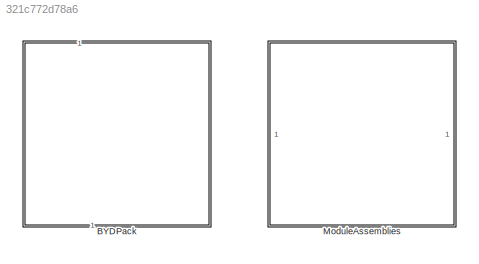
MODEL slx_321c772d78a6
KIND library
CONFIG AbsTol = auto
CONFIG EnableMultiTasking = off
CONFIG FixedStep = auto
CONFIG MaxStep = auto
CONFIG MinStep = auto
CONFIG RelTol = 1e-3
CONFIG SampleTimeConstraint = Unconstrained
CONFIG SolverName = VariableStepAuto
CONFIG StartTime = 0.0
CONFIG StopTime = 10.0
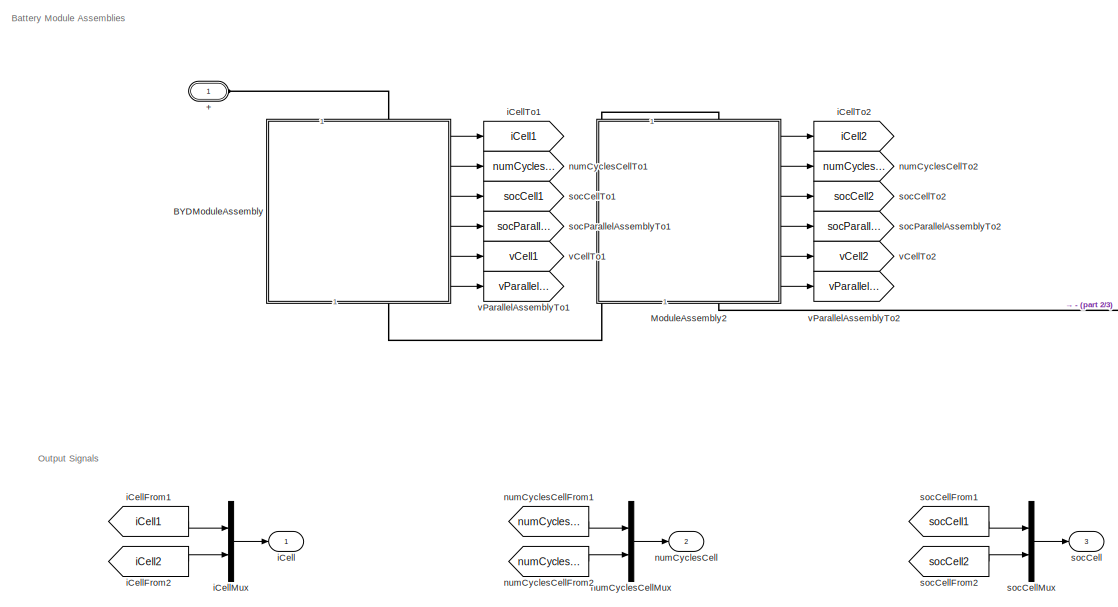
[diagram: BYDPack - part 1/3, left side, full height]
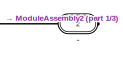
[diagram: BYDPack - part 2/3, top right region]
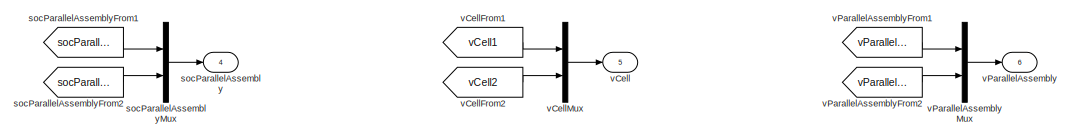
[diagram: BYDPack - part 3/3, bottom right region]
BLOCK [SubSystem] BYDPack
  CopyFcn = battery_builder_rtmsupport('copyfcn',gcbh);
  LoadFcn = battery_builder_rtmsupport('loadfcn',gcbh);
  PortSchema = {"entries":[{"content":{"sides":[{"content":{"connectorIds":["LConn1"]},"type":"ConnectorPlacement.EquallySpacedRectSide","uuid":"aeacc5ac-7cbb-4c04-9c68-9cbf0c1e86d1"},{"content":{"connectorIds":["RConn1"],"side":"RIGHT"},"type":"ConnectorPlacement.EquallySpacedRectSide","uuid":"4793d8a8-6647-416e-a1cf-54c877f8d0df"},{"content":{"side":"TOP"},"type":"ConnectorPlacement.EquallySpacedRectSide","uui...<+412ch>  <repeated x4 — deduplicated; at blocks: BYDPack, BYDModuleAssembly, ModuleAssembly2, ModuleAssemblyType1>
  PreCopyFcn = battery_builder_rtmsupport('precopyfcn',gcbh);
  PreDeleteFcn = battery_builder_rtmsupport('predeletefcn',gcbh);
BLOCK [PMIOPort] BYDPack/+
  Side = Left
BLOCK [PMIOPort] BYDPack/-
  Port = 2
  Side = Right
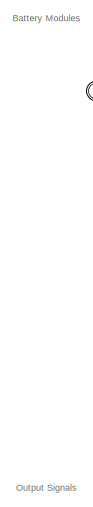
[diagram: BYDPack/BYDModuleAssembly - part 1/5, top left region]
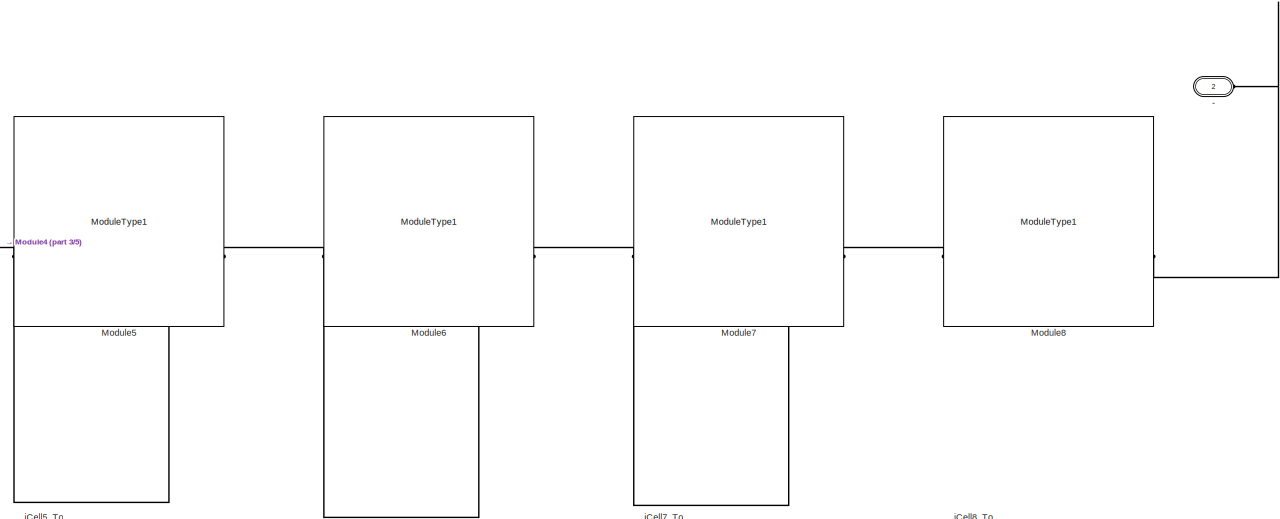
[diagram: BYDPack/BYDModuleAssembly - part 2/5, top right region]
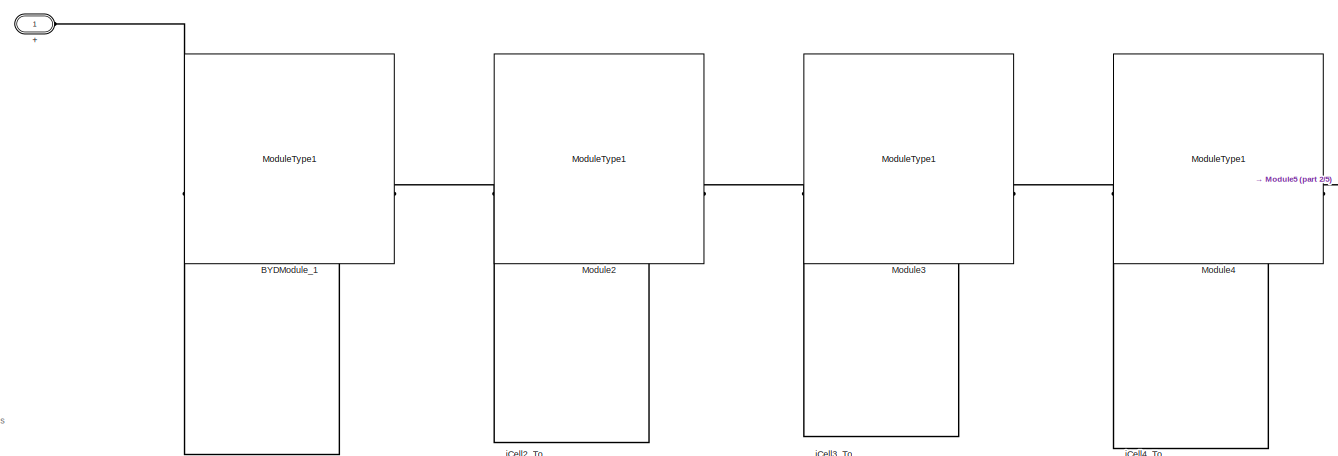
[diagram: BYDPack/BYDModuleAssembly - part 3/5, top left region]
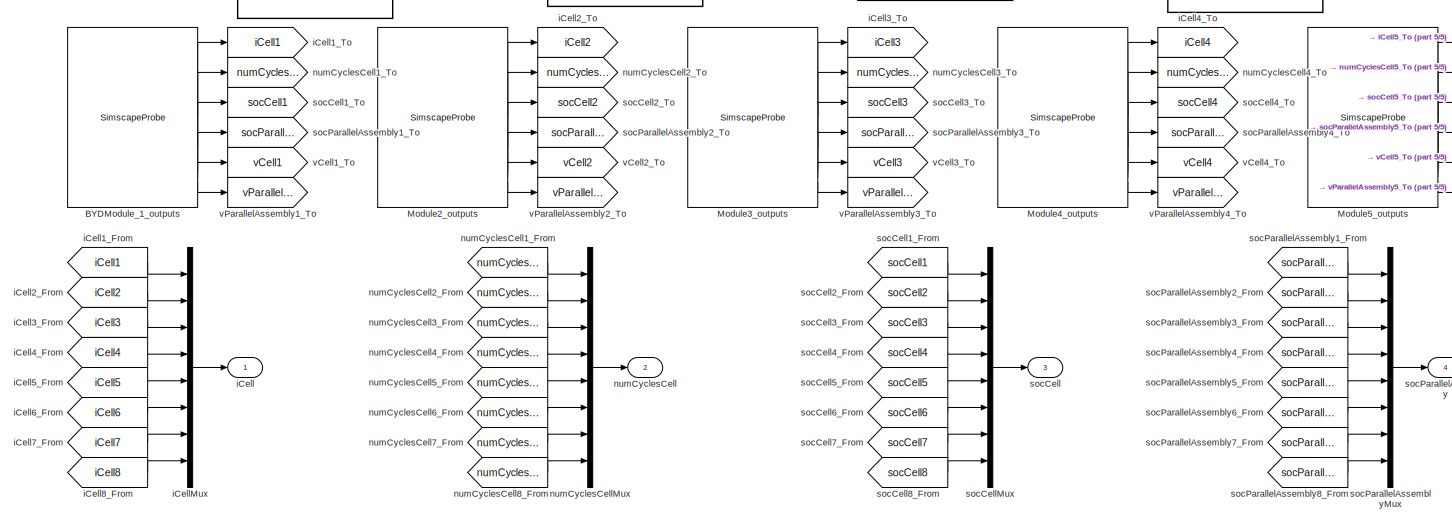
[diagram: BYDPack/BYDModuleAssembly - part 4/5, bottom left region]
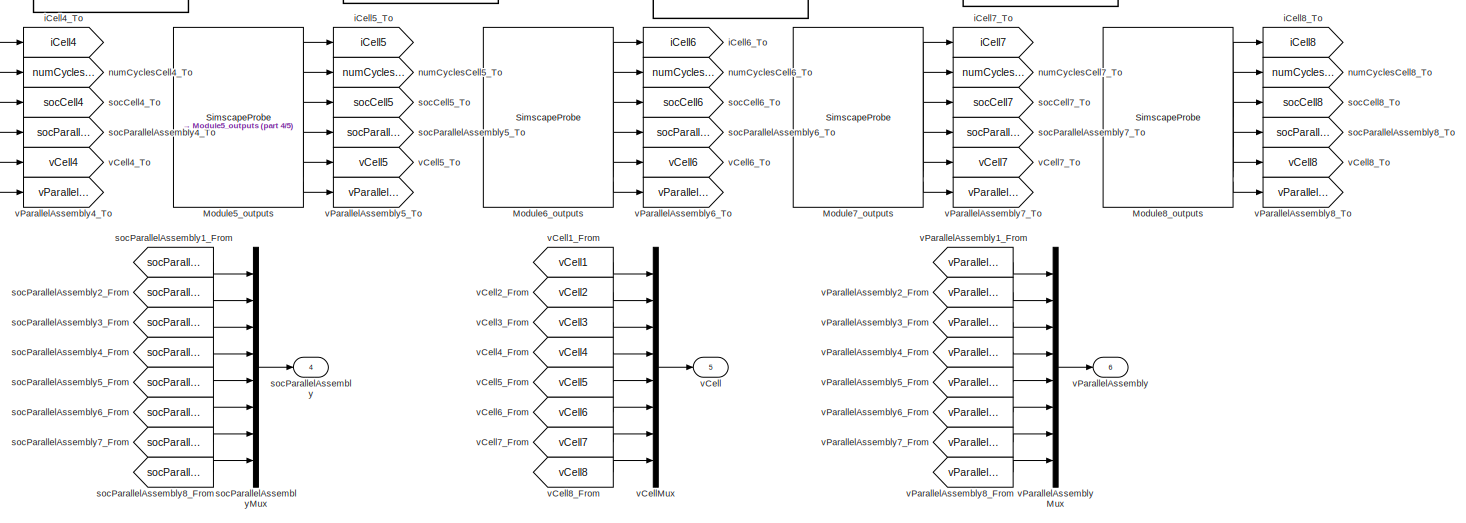
[diagram: BYDPack/BYDModuleAssembly - part 5/5, bottom right region]
BLOCK [SubSystem] BYDPack/BYDModuleAssembly
  CopyFcn = battery_builder_rtmsupport('copyfcn',gcbh);
  LoadFcn = battery_builder_rtmsupport('loadfcn',gcbh);
  PreCopyFcn = battery_builder_rtmsupport('precopyfcn',gcbh);
  PreDeleteFcn = battery_builder_rtmsupport('predeletefcn',gcbh);
BLOCK [PMIOPort] BYDPack/BYDModuleAssembly/+
  Side = Left
BLOCK [PMIOPort] BYDPack/BYDModuleAssembly/-
  Port = 2
  Side = Right
BLOCK [Reference] BYDPack/BYDModuleAssembly/BYDModule_1  REF=Batteries_BYD_lib/Modules/ModuleType1
  SourceBlock = Batteries_BYD_lib/Modules/ModuleType1
  SourceType = ModuleType1
BLOCK [SimscapeProbe] BYDPack/BYDModuleAssembly/BYDModule_1_outputs
  BoundBlock = 133
  Variables = {"iCell":{"Probing":"ON"},"numCyclesCell":{"Probing":"ON"},"socCell":{"Probing":"ON"},"socParallelAssembly":{"Probing":"ON"},"vCell":{"Probing":"ON"},"vParallelAssembly":{"Probing":"ON"}}
BLOCK [Reference] BYDPack/BYDModuleAssembly/Module2  REF=Batteries_BYD_lib/Modules/ModuleType1
  SourceBlock = Batteries_BYD_lib/Modules/ModuleType1
  SourceType = ModuleType1
BLOCK [SimscapeProbe] BYDPack/BYDModuleAssembly/Module2_outputs
  BoundBlock = 135
  Variables = {"iCell":{"Probing":"ON"},"numCyclesCell":{"Probing":"ON"},"socCell":{"Probing":"ON"},"socParallelAssembly":{"Probing":"ON"},"vCell":{"Probing":"ON"},"vParallelAssembly":{"Probing":"ON"}}
BLOCK [Reference] BYDPack/BYDModuleAssembly/Module3  REF=Batteries_BYD_lib/Modules/ModuleType1
  SourceBlock = Batteries_BYD_lib/Modules/ModuleType1
  SourceType = ModuleType1
BLOCK [SimscapeProbe] BYDPack/BYDModuleAssembly/Module3_outputs
  BoundBlock = 137
  Variables = {"iCell":{"Probing":"ON"},"numCyclesCell":{"Probing":"ON"},"socCell":{"Probing":"ON"},"socParallelAssembly":{"Probing":"ON"},"vCell":{"Probing":"ON"},"vParallelAssembly":{"Probing":"ON"}}
BLOCK [Reference] BYDPack/BYDModuleAssembly/Module4  REF=Batteries_BYD_lib/Modules/ModuleType1
  SourceBlock = Batteries_BYD_lib/Modules/ModuleType1
  SourceType = ModuleType1
BLOCK [SimscapeProbe] BYDPack/BYDModuleAssembly/Module4_outputs
  BoundBlock = 139
  Variables = {"iCell":{"Probing":"ON"},"numCyclesCell":{"Probing":"ON"},"socCell":{"Probing":"ON"},"socParallelAssembly":{"Probing":"ON"},"vCell":{"Probing":"ON"},"vParallelAssembly":{"Probing":"ON"}}
BLOCK [Reference] BYDPack/BYDModuleAssembly/Module5  REF=Batteries_BYD_lib/Modules/ModuleType1
  SourceBlock = Batteries_BYD_lib/Modules/ModuleType1
  SourceType = ModuleType1
BLOCK [SimscapeProbe] BYDPack/BYDModuleAssembly/Module5_outputs
  BoundBlock = 141
  Variables = {"iCell":{"Probing":"ON"},"numCyclesCell":{"Probing":"ON"},"socCell":{"Probing":"ON"},"socParallelAssembly":{"Probing":"ON"},"vCell":{"Probing":"ON"},"vParallelAssembly":{"Probing":"ON"}}
BLOCK [Reference] BYDPack/BYDModuleAssembly/Module6  REF=Batteries_BYD_lib/Modules/ModuleType1
  SourceBlock = Batteries_BYD_lib/Modules/ModuleType1
  SourceType = ModuleType1
BLOCK [SimscapeProbe] BYDPack/BYDModuleAssembly/Module6_outputs
  BoundBlock = 143
  Variables = {"iCell":{"Probing":"ON"},"numCyclesCell":{"Probing":"ON"},"socCell":{"Probing":"ON"},"socParallelAssembly":{"Probing":"ON"},"vCell":{"Probing":"ON"},"vParallelAssembly":{"Probing":"ON"}}
BLOCK [Reference] BYDPack/BYDModuleAssembly/Module7  REF=Batteries_BYD_lib/Modules/ModuleType1
  SourceBlock = Batteries_BYD_lib/Modules/ModuleType1
  SourceType = ModuleType1
BLOCK [SimscapeProbe] BYDPack/BYDModuleAssembly/Module7_outputs
  BoundBlock = 145
  Variables = {"iCell":{"Probing":"ON"},"numCyclesCell":{"Probing":"ON"},"socCell":{"Probing":"ON"},"socParallelAssembly":{"Probing":"ON"},"vCell":{"Probing":"ON"},"vParallelAssembly":{"Probing":"ON"}}
BLOCK [Reference] BYDPack/BYDModuleAssembly/Module8  REF=Batteries_BYD_lib/Modules/ModuleType1
  SourceBlock = Batteries_BYD_lib/Modules/ModuleType1
  SourceType = ModuleType1
BLOCK [SimscapeProbe] BYDPack/BYDModuleAssembly/Module8_outputs
  BoundBlock = 147
  Variables = {"iCell":{"Probing":"ON"},"numCyclesCell":{"Probing":"ON"},"socCell":{"Probing":"ON"},"socParallelAssembly":{"Probing":"ON"},"vCell":{"Probing":"ON"},"vParallelAssembly":{"Probing":"ON"}}
BLOCK [Outport] BYDPack/BYDModuleAssembly/iCell
BLOCK [From] BYDPack/BYDModuleAssembly/iCell1_From
  GotoTag = iCell1
BLOCK [Goto] BYDPack/BYDModuleAssembly/iCell1_To
  GotoTag = iCell1
BLOCK [From] BYDPack/BYDModuleAssembly/iCell2_From
  GotoTag = iCell2
BLOCK [Goto] BYDPack/BYDModuleAssembly/iCell2_To
  GotoTag = iCell2
BLOCK [From] BYDPack/BYDModuleAssembly/iCell3_From
  GotoTag = iCell3
BLOCK [Goto] BYDPack/BYDModuleAssembly/iCell3_To
  GotoTag = iCell3
BLOCK [From] BYDPack/BYDModuleAssembly/iCell4_From
  GotoTag = iCell4
BLOCK [Goto] BYDPack/BYDModuleAssembly/iCell4_To
  GotoTag = iCell4
BLOCK [From] BYDPack/BYDModuleAssembly/iCell5_From
  GotoTag = iCell5
BLOCK [Goto] BYDPack/BYDModuleAssembly/iCell5_To
  GotoTag = iCell5
BLOCK [From] BYDPack/BYDModuleAssembly/iCell6_From
  GotoTag = iCell6
BLOCK [Goto] BYDPack/BYDModuleAssembly/iCell6_To
  GotoTag = iCell6
BLOCK [From] BYDPack/BYDModuleAssembly/iCell7_From
  GotoTag = iCell7
BLOCK [Goto] BYDPack/BYDModuleAssembly/iCell7_To
  GotoTag = iCell7
BLOCK [From] BYDPack/BYDModuleAssembly/iCell8_From
  GotoTag = iCell8
BLOCK [Goto] BYDPack/BYDModuleAssembly/iCell8_To
  GotoTag = iCell8
BLOCK [Mux] BYDPack/BYDModuleAssembly/iCellMux
  DisplayOption = bar
  Inputs = 8
BLOCK [Outport] BYDPack/BYDModuleAssembly/numCyclesCell
  Port = 2
BLOCK [From] BYDPack/BYDModuleAssembly/numCyclesCell1_From
  GotoTag = numCyclesCell1
BLOCK [Goto] BYDPack/BYDModuleAssembly/numCyclesCell1_To
  GotoTag = numCyclesCell1
BLOCK [From] BYDPack/BYDModuleAssembly/numCyclesCell2_From
  GotoTag = numCyclesCell2
BLOCK [Goto] BYDPack/BYDModuleAssembly/numCyclesCell2_To
  GotoTag = numCyclesCell2
BLOCK [From] BYDPack/BYDModuleAssembly/numCyclesCell3_From
  GotoTag = numCyclesCell3
BLOCK [Goto] BYDPack/BYDModuleAssembly/numCyclesCell3_To
  GotoTag = numCyclesCell3
BLOCK [From] BYDPack/BYDModuleAssembly/numCyclesCell4_From
  GotoTag = numCyclesCell4
BLOCK [Goto] BYDPack/BYDModuleAssembly/numCyclesCell4_To
  GotoTag = numCyclesCell4
BLOCK [From] BYDPack/BYDModuleAssembly/numCyclesCell5_From
  GotoTag = numCyclesCell5
BLOCK [Goto] BYDPack/BYDModuleAssembly/numCyclesCell5_To
  GotoTag = numCyclesCell5
BLOCK [From] BYDPack/BYDModuleAssembly/numCyclesCell6_From
  GotoTag = numCyclesCell6
BLOCK [Goto] BYDPack/BYDModuleAssembly/numCyclesCell6_To
  GotoTag = numCyclesCell6
BLOCK [From] BYDPack/BYDModuleAssembly/numCyclesCell7_From
  GotoTag = numCyclesCell7
BLOCK [Goto] BYDPack/BYDModuleAssembly/numCyclesCell7_To
  GotoTag = numCyclesCell7
BLOCK [From] BYDPack/BYDModuleAssembly/numCyclesCell8_From
  GotoTag = numCyclesCell8
BLOCK [Goto] BYDPack/BYDModuleAssembly/numCyclesCell8_To
  GotoTag = numCyclesCell8
BLOCK [Mux] BYDPack/BYDModuleAssembly/numCyclesCellMux
  DisplayOption = bar
  Inputs = 8
BLOCK [Outport] BYDPack/BYDModuleAssembly/socCell
  Port = 3
BLOCK [From] BYDPack/BYDModuleAssembly/socCell1_From
  GotoTag = socCell1
BLOCK [Goto] BYDPack/BYDModuleAssembly/socCell1_To
  GotoTag = socCell1
BLOCK [From] BYDPack/BYDModuleAssembly/socCell2_From
  GotoTag = socCell2
BLOCK [Goto] BYDPack/BYDModuleAssembly/socCell2_To
  GotoTag = socCell2
BLOCK [From] BYDPack/BYDModuleAssembly/socCell3_From
  GotoTag = socCell3
BLOCK [Goto] BYDPack/BYDModuleAssembly/socCell3_To
  GotoTag = socCell3
BLOCK [From] BYDPack/BYDModuleAssembly/socCell4_From
  GotoTag = socCell4
BLOCK [Goto] BYDPack/BYDModuleAssembly/socCell4_To
  GotoTag = socCell4
BLOCK [From] BYDPack/BYDModuleAssembly/socCell5_From
  GotoTag = socCell5
BLOCK [Goto] BYDPack/BYDModuleAssembly/socCell5_To
  GotoTag = socCell5
BLOCK [From] BYDPack/BYDModuleAssembly/socCell6_From
  GotoTag = socCell6
BLOCK [Goto] BYDPack/BYDModuleAssembly/socCell6_To
  GotoTag = socCell6
BLOCK [From] BYDPack/BYDModuleAssembly/socCell7_From
  GotoTag = socCell7
BLOCK [Goto] BYDPack/BYDModuleAssembly/socCell7_To
  GotoTag = socCell7
BLOCK [From] BYDPack/BYDModuleAssembly/socCell8_From
  GotoTag = socCell8
BLOCK [Goto] BYDPack/BYDModuleAssembly/socCell8_To
  GotoTag = socCell8
BLOCK [Mux] BYDPack/BYDModuleAssembly/socCellMux
  DisplayOption = bar
  Inputs = 8
BLOCK [Outport] BYDPack/BYDModuleAssembly/socParallelAssembly
  Port = 4
BLOCK [From] BYDPack/BYDModuleAssembly/socParallelAssembly1_From
  GotoTag = socParallelAssembly1
BLOCK [Goto] BYDPack/BYDModuleAssembly/socParallelAssembly1_To
  GotoTag = socParallelAssembly1
BLOCK [From] BYDPack/BYDModuleAssembly/socParallelAssembly2_From
  GotoTag = socParallelAssembly2
BLOCK [Goto] BYDPack/BYDModuleAssembly/socParallelAssembly2_To
  GotoTag = socParallelAssembly2
BLOCK [From] BYDPack/BYDModuleAssembly/socParallelAssembly3_From
  GotoTag = socParallelAssembly3
BLOCK [Goto] BYDPack/BYDModuleAssembly/socParallelAssembly3_To
  GotoTag = socParallelAssembly3
BLOCK [From] BYDPack/BYDModuleAssembly/socParallelAssembly4_From
  GotoTag = socParallelAssembly4
BLOCK [Goto] BYDPack/BYDModuleAssembly/socParallelAssembly4_To
  GotoTag = socParallelAssembly4
BLOCK [From] BYDPack/BYDModuleAssembly/socParallelAssembly5_From
  GotoTag = socParallelAssembly5
BLOCK [Goto] BYDPack/BYDModuleAssembly/socParallelAssembly5_To
  GotoTag = socParallelAssembly5
BLOCK [From] BYDPack/BYDModuleAssembly/socParallelAssembly6_From
  GotoTag = socParallelAssembly6
BLOCK [Goto] BYDPack/BYDModuleAssembly/socParallelAssembly6_To
  GotoTag = socParallelAssembly6
BLOCK [From] BYDPack/BYDModuleAssembly/socParallelAssembly7_From
  GotoTag = socParallelAssembly7
BLOCK [Goto] BYDPack/BYDModuleAssembly/socParallelAssembly7_To
  GotoTag = socParallelAssembly7
BLOCK [From] BYDPack/BYDModuleAssembly/socParallelAssembly8_From
  GotoTag = socParallelAssembly8
BLOCK [Goto] BYDPack/BYDModuleAssembly/socParallelAssembly8_To
  GotoTag = socParallelAssembly8
BLOCK [Mux] BYDPack/BYDModuleAssembly/socParallelAssemblyMux
  DisplayOption = bar
  Inputs = 8
BLOCK [Outport] BYDPack/BYDModuleAssembly/vCell
  Port = 5
BLOCK [From] BYDPack/BYDModuleAssembly/vCell1_From
  GotoTag = vCell1
BLOCK [Goto] BYDPack/BYDModuleAssembly/vCell1_To
  GotoTag = vCell1
BLOCK [From] BYDPack/BYDModuleAssembly/vCell2_From
  GotoTag = vCell2
BLOCK [Goto] BYDPack/BYDModuleAssembly/vCell2_To
  GotoTag = vCell2
BLOCK [From] BYDPack/BYDModuleAssembly/vCell3_From
  GotoTag = vCell3
BLOCK [Goto] BYDPack/BYDModuleAssembly/vCell3_To
  GotoTag = vCell3
BLOCK [From] BYDPack/BYDModuleAssembly/vCell4_From
  GotoTag = vCell4
BLOCK [Goto] BYDPack/BYDModuleAssembly/vCell4_To
  GotoTag = vCell4
BLOCK [From] BYDPack/BYDModuleAssembly/vCell5_From
  GotoTag = vCell5
BLOCK [Goto] BYDPack/BYDModuleAssembly/vCell5_To
  GotoTag = vCell5
BLOCK [From] BYDPack/BYDModuleAssembly/vCell6_From
  GotoTag = vCell6
BLOCK [Goto] BYDPack/BYDModuleAssembly/vCell6_To
  GotoTag = vCell6
BLOCK [From] BYDPack/BYDModuleAssembly/vCell7_From
  GotoTag = vCell7
BLOCK [Goto] BYDPack/BYDModuleAssembly/vCell7_To
  GotoTag = vCell7
BLOCK [From] BYDPack/BYDModuleAssembly/vCell8_From
  GotoTag = vCell8
BLOCK [Goto] BYDPack/BYDModuleAssembly/vCell8_To
  GotoTag = vCell8
BLOCK [Mux] BYDPack/BYDModuleAssembly/vCellMux
  DisplayOption = bar
  Inputs = 8
BLOCK [Outport] BYDPack/BYDModuleAssembly/vParallelAssembly
  Port = 6
BLOCK [From] BYDPack/BYDModuleAssembly/vParallelAssembly1_From
  GotoTag = vParallelAssembly1
BLOCK [Goto] BYDPack/BYDModuleAssembly/vParallelAssembly1_To
  GotoTag = vParallelAssembly1
BLOCK [From] BYDPack/BYDModuleAssembly/vParallelAssembly2_From
  GotoTag = vParallelAssembly2
BLOCK [Goto] BYDPack/BYDModuleAssembly/vParallelAssembly2_To
  GotoTag = vParallelAssembly2
BLOCK [From] BYDPack/BYDModuleAssembly/vParallelAssembly3_From
  GotoTag = vParallelAssembly3
BLOCK [Goto] BYDPack/BYDModuleAssembly/vParallelAssembly3_To
  GotoTag = vParallelAssembly3
BLOCK [From] BYDPack/BYDModuleAssembly/vParallelAssembly4_From
  GotoTag = vParallelAssembly4
BLOCK [Goto] BYDPack/BYDModuleAssembly/vParallelAssembly4_To
  GotoTag = vParallelAssembly4
BLOCK [From] BYDPack/BYDModuleAssembly/vParallelAssembly5_From
  GotoTag = vParallelAssembly5
BLOCK [Goto] BYDPack/BYDModuleAssembly/vParallelAssembly5_To
  GotoTag = vParallelAssembly5
BLOCK [From] BYDPack/BYDModuleAssembly/vParallelAssembly6_From
  GotoTag = vParallelAssembly6
BLOCK [Goto] BYDPack/BYDModuleAssembly/vParallelAssembly6_To
  GotoTag = vParallelAssembly6
BLOCK [From] BYDPack/BYDModuleAssembly/vParallelAssembly7_From
  GotoTag = vParallelAssembly7
BLOCK [Goto] BYDPack/BYDModuleAssembly/vParallelAssembly7_To
  GotoTag = vParallelAssembly7
BLOCK [From] BYDPack/BYDModuleAssembly/vParallelAssembly8_From
  GotoTag = vParallelAssembly8
BLOCK [Goto] BYDPack/BYDModuleAssembly/vParallelAssembly8_To
  GotoTag = vParallelAssembly8
BLOCK [Mux] BYDPack/BYDModuleAssembly/vParallelAssemblyMux
  DisplayOption = bar
  Inputs = 8
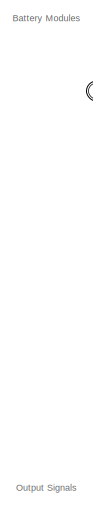
[diagram: BYDPack/ModuleAssembly2 - part 1/5, top left region]
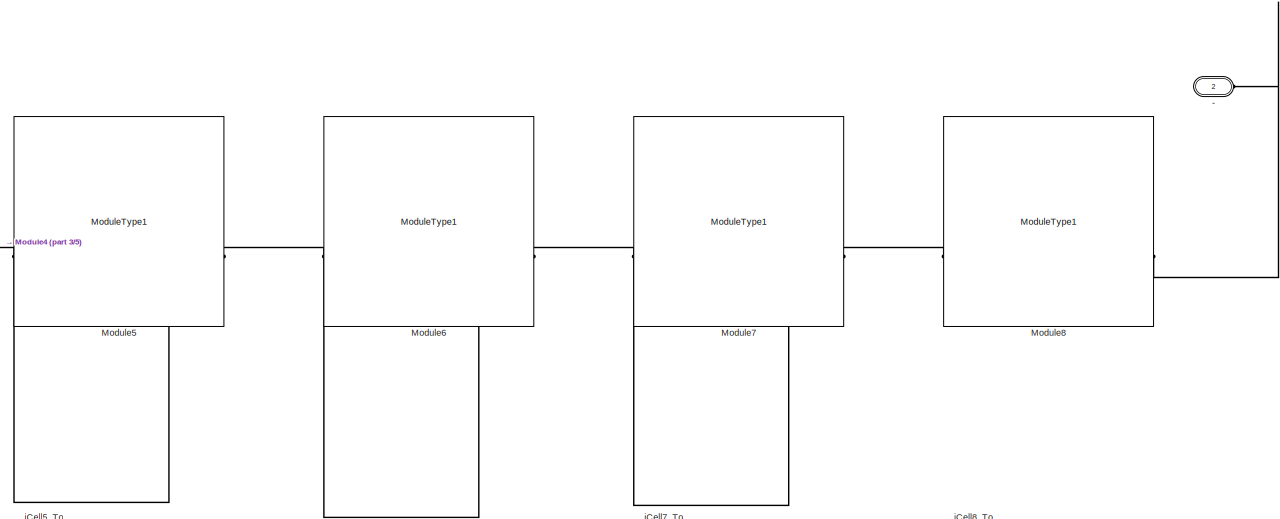
[diagram: BYDPack/ModuleAssembly2 - part 2/5, top right region]
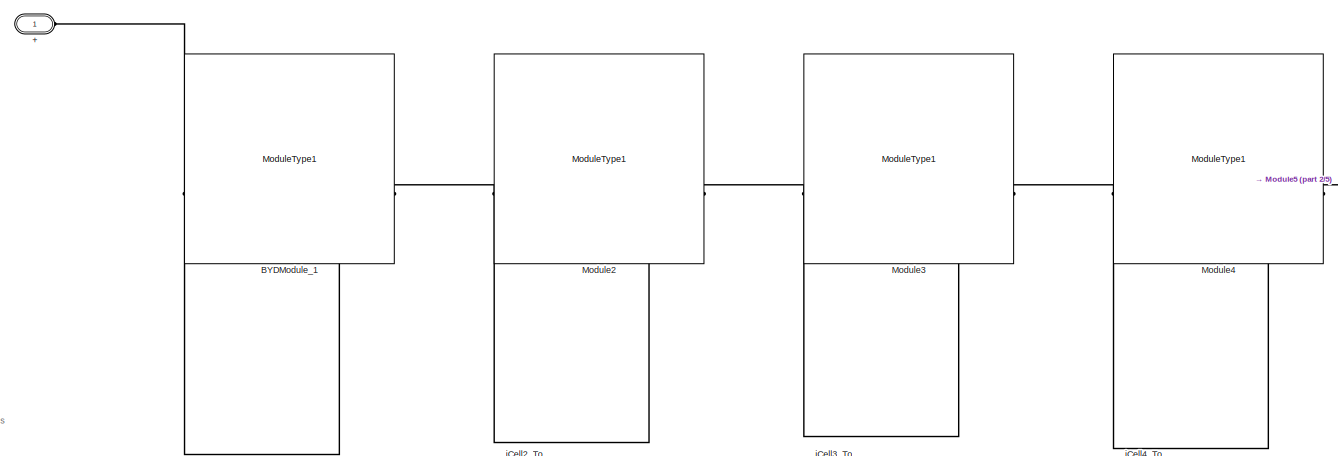
[diagram: BYDPack/ModuleAssembly2 - part 3/5, top left region]
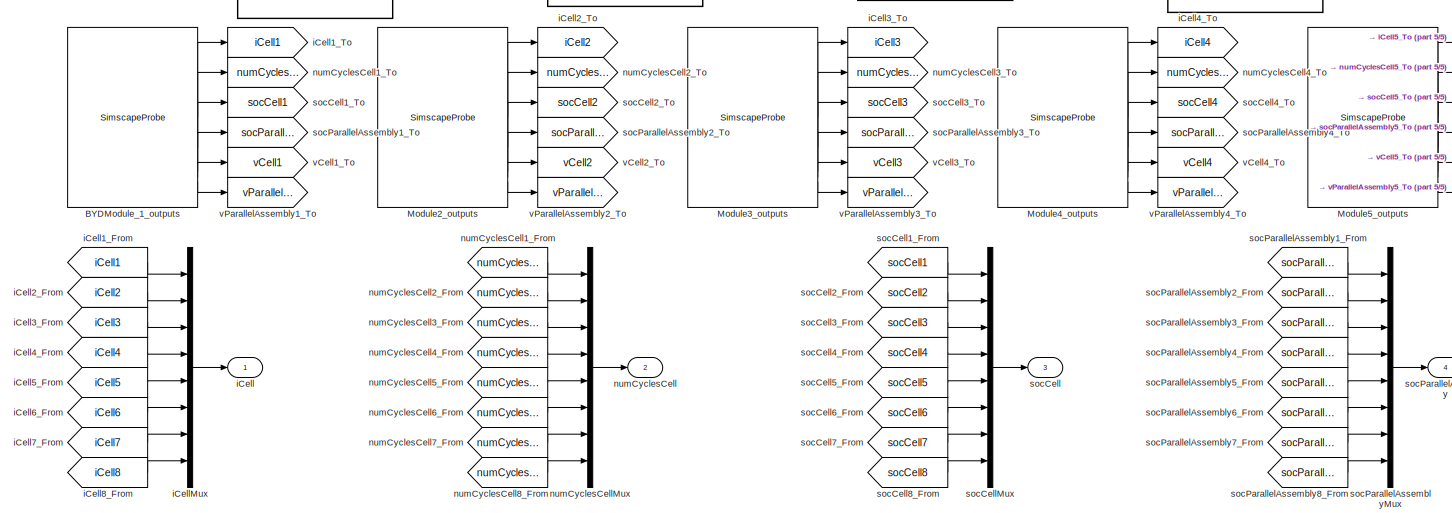
[diagram: BYDPack/ModuleAssembly2 - part 4/5, bottom left region]
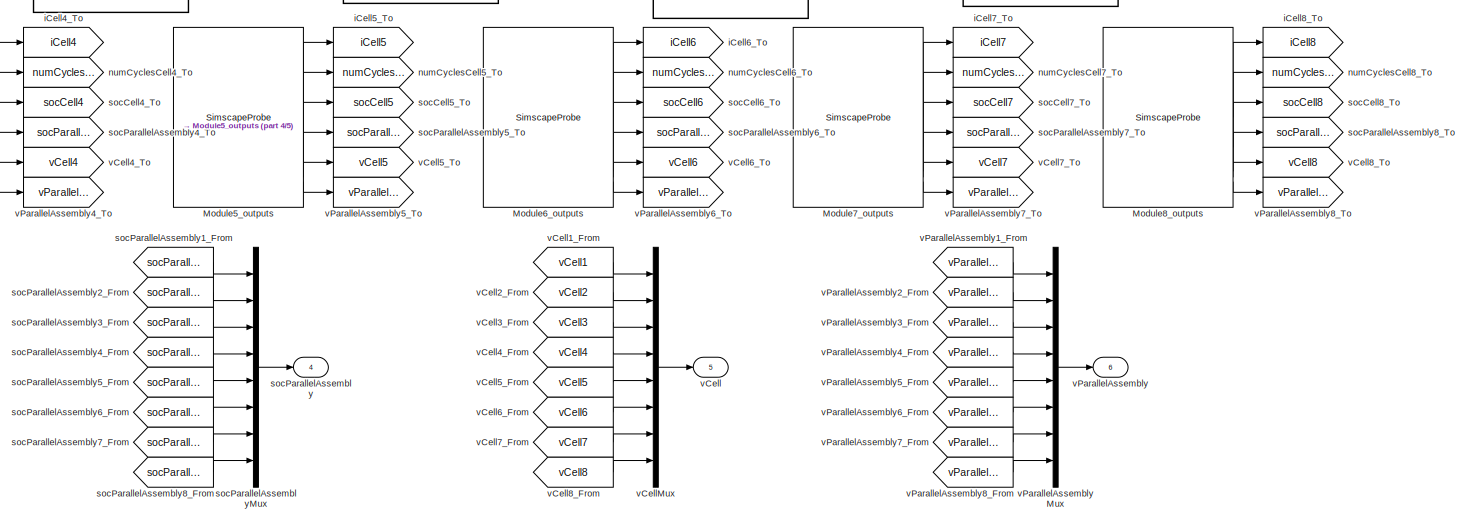
[diagram: BYDPack/ModuleAssembly2 - part 5/5, bottom right region]
BLOCK [SubSystem] BYDPack/ModuleAssembly2
  CopyFcn = battery_builder_rtmsupport('copyfcn',gcbh);
  LoadFcn = battery_builder_rtmsupport('loadfcn',gcbh);
  PreCopyFcn = battery_builder_rtmsupport('precopyfcn',gcbh);
  PreDeleteFcn = battery_builder_rtmsupport('predeletefcn',gcbh);
BLOCK [PMIOPort] BYDPack/ModuleAssembly2/+
  Side = Left
BLOCK [PMIOPort] BYDPack/ModuleAssembly2/-
  Port = 2
  Side = Right
BLOCK [Reference] BYDPack/ModuleAssembly2/BYDModule_1  REF=Batteries_BYD_lib/Modules/ModuleType1
  SourceBlock = Batteries_BYD_lib/Modules/ModuleType1
  SourceType = ModuleType1
BLOCK [SimscapeProbe] BYDPack/ModuleAssembly2/BYDModule_1_outputs
  BoundBlock = 262
  Variables = {"iCell":{"Probing":"ON"},"numCyclesCell":{"Probing":"ON"},"socCell":{"Probing":"ON"},"socParallelAssembly":{"Probing":"ON"},"vCell":{"Probing":"ON"},"vParallelAssembly":{"Probing":"ON"}}
BLOCK [Reference] BYDPack/ModuleAssembly2/Module2  REF=Batteries_BYD_lib/Modules/ModuleType1
  SourceBlock = Batteries_BYD_lib/Modules/ModuleType1
  SourceType = ModuleType1
BLOCK [SimscapeProbe] BYDPack/ModuleAssembly2/Module2_outputs
  BoundBlock = 264
  Variables = {"iCell":{"Probing":"ON"},"numCyclesCell":{"Probing":"ON"},"socCell":{"Probing":"ON"},"socParallelAssembly":{"Probing":"ON"},"vCell":{"Probing":"ON"},"vParallelAssembly":{"Probing":"ON"}}
BLOCK [Reference] BYDPack/ModuleAssembly2/Module3  REF=Batteries_BYD_lib/Modules/ModuleType1
  SourceBlock = Batteries_BYD_lib/Modules/ModuleType1
  SourceType = ModuleType1
BLOCK [SimscapeProbe] BYDPack/ModuleAssembly2/Module3_outputs
  BoundBlock = 266
  Variables = {"iCell":{"Probing":"ON"},"numCyclesCell":{"Probing":"ON"},"socCell":{"Probing":"ON"},"socParallelAssembly":{"Probing":"ON"},"vCell":{"Probing":"ON"},"vParallelAssembly":{"Probing":"ON"}}
BLOCK [Reference] BYDPack/ModuleAssembly2/Module4  REF=Batteries_BYD_lib/Modules/ModuleType1
  SourceBlock = Batteries_BYD_lib/Modules/ModuleType1
  SourceType = ModuleType1
BLOCK [SimscapeProbe] BYDPack/ModuleAssembly2/Module4_outputs
  BoundBlock = 268
  Variables = {"iCell":{"Probing":"ON"},"numCyclesCell":{"Probing":"ON"},"socCell":{"Probing":"ON"},"socParallelAssembly":{"Probing":"ON"},"vCell":{"Probing":"ON"},"vParallelAssembly":{"Probing":"ON"}}
BLOCK [Reference] BYDPack/ModuleAssembly2/Module5  REF=Batteries_BYD_lib/Modules/ModuleType1
  SourceBlock = Batteries_BYD_lib/Modules/ModuleType1
  SourceType = ModuleType1
BLOCK [SimscapeProbe] BYDPack/ModuleAssembly2/Module5_outputs
  BoundBlock = 270
  Variables = {"iCell":{"Probing":"ON"},"numCyclesCell":{"Probing":"ON"},"socCell":{"Probing":"ON"},"socParallelAssembly":{"Probing":"ON"},"vCell":{"Probing":"ON"},"vParallelAssembly":{"Probing":"ON"}}
BLOCK [Reference] BYDPack/ModuleAssembly2/Module6  REF=Batteries_BYD_lib/Modules/ModuleType1
  SourceBlock = Batteries_BYD_lib/Modules/ModuleType1
  SourceType = ModuleType1
BLOCK [SimscapeProbe] BYDPack/ModuleAssembly2/Module6_outputs
  BoundBlock = 272
  Variables = {"iCell":{"Probing":"ON"},"numCyclesCell":{"Probing":"ON"},"socCell":{"Probing":"ON"},"socParallelAssembly":{"Probing":"ON"},"vCell":{"Probing":"ON"},"vParallelAssembly":{"Probing":"ON"}}
BLOCK [Reference] BYDPack/ModuleAssembly2/Module7  REF=Batteries_BYD_lib/Modules/ModuleType1
  SourceBlock = Batteries_BYD_lib/Modules/ModuleType1
  SourceType = ModuleType1
BLOCK [SimscapeProbe] BYDPack/ModuleAssembly2/Module7_outputs
  BoundBlock = 274
  Variables = {"iCell":{"Probing":"ON"},"numCyclesCell":{"Probing":"ON"},"socCell":{"Probing":"ON"},"socParallelAssembly":{"Probing":"ON"},"vCell":{"Probing":"ON"},"vParallelAssembly":{"Probing":"ON"}}
BLOCK [Reference] BYDPack/ModuleAssembly2/Module8  REF=Batteries_BYD_lib/Modules/ModuleType1
  SourceBlock = Batteries_BYD_lib/Modules/ModuleType1
  SourceType = ModuleType1
BLOCK [SimscapeProbe] BYDPack/ModuleAssembly2/Module8_outputs
  BoundBlock = 276
  Variables = {"iCell":{"Probing":"ON"},"numCyclesCell":{"Probing":"ON"},"socCell":{"Probing":"ON"},"socParallelAssembly":{"Probing":"ON"},"vCell":{"Probing":"ON"},"vParallelAssembly":{"Probing":"ON"}}
BLOCK [Outport] BYDPack/ModuleAssembly2/iCell
BLOCK [From] BYDPack/ModuleAssembly2/iCell1_From
  GotoTag = iCell1
BLOCK [Goto] BYDPack/ModuleAssembly2/iCell1_To
  GotoTag = iCell1
BLOCK [From] BYDPack/ModuleAssembly2/iCell2_From
  GotoTag = iCell2
BLOCK [Goto] BYDPack/ModuleAssembly2/iCell2_To
  GotoTag = iCell2
BLOCK [From] BYDPack/ModuleAssembly2/iCell3_From
  GotoTag = iCell3
BLOCK [Goto] BYDPack/ModuleAssembly2/iCell3_To
  GotoTag = iCell3
BLOCK [From] BYDPack/ModuleAssembly2/iCell4_From
  GotoTag = iCell4
BLOCK [Goto] BYDPack/ModuleAssembly2/iCell4_To
  GotoTag = iCell4
BLOCK [From] BYDPack/ModuleAssembly2/iCell5_From
  GotoTag = iCell5
BLOCK [Goto] BYDPack/ModuleAssembly2/iCell5_To
  GotoTag = iCell5
BLOCK [From] BYDPack/ModuleAssembly2/iCell6_From
  GotoTag = iCell6
BLOCK [Goto] BYDPack/ModuleAssembly2/iCell6_To
  GotoTag = iCell6
BLOCK [From] BYDPack/ModuleAssembly2/iCell7_From
  GotoTag = iCell7
BLOCK [Goto] BYDPack/ModuleAssembly2/iCell7_To
  GotoTag = iCell7
BLOCK [From] BYDPack/ModuleAssembly2/iCell8_From
  GotoTag = iCell8
BLOCK [Goto] BYDPack/ModuleAssembly2/iCell8_To
  GotoTag = iCell8
BLOCK [Mux] BYDPack/ModuleAssembly2/iCellMux
  DisplayOption = bar
  Inputs = 8
BLOCK [Outport] BYDPack/ModuleAssembly2/numCyclesCell
  Port = 2
BLOCK [From] BYDPack/ModuleAssembly2/numCyclesCell1_From
  GotoTag = numCyclesCell1
BLOCK [Goto] BYDPack/ModuleAssembly2/numCyclesCell1_To
  GotoTag = numCyclesCell1
BLOCK [From] BYDPack/ModuleAssembly2/numCyclesCell2_From
  GotoTag = numCyclesCell2
BLOCK [Goto] BYDPack/ModuleAssembly2/numCyclesCell2_To
  GotoTag = numCyclesCell2
BLOCK [From] BYDPack/ModuleAssembly2/numCyclesCell3_From
  GotoTag = numCyclesCell3
BLOCK [Goto] BYDPack/ModuleAssembly2/numCyclesCell3_To
  GotoTag = numCyclesCell3
BLOCK [From] BYDPack/ModuleAssembly2/numCyclesCell4_From
  GotoTag = numCyclesCell4
BLOCK [Goto] BYDPack/ModuleAssembly2/numCyclesCell4_To
  GotoTag = numCyclesCell4
BLOCK [From] BYDPack/ModuleAssembly2/numCyclesCell5_From
  GotoTag = numCyclesCell5
BLOCK [Goto] BYDPack/ModuleAssembly2/numCyclesCell5_To
  GotoTag = numCyclesCell5
BLOCK [From] BYDPack/ModuleAssembly2/numCyclesCell6_From
  GotoTag = numCyclesCell6
BLOCK [Goto] BYDPack/ModuleAssembly2/numCyclesCell6_To
  GotoTag = numCyclesCell6
BLOCK [From] BYDPack/ModuleAssembly2/numCyclesCell7_From
  GotoTag = numCyclesCell7
BLOCK [Goto] BYDPack/ModuleAssembly2/numCyclesCell7_To
  GotoTag = numCyclesCell7
BLOCK [From] BYDPack/ModuleAssembly2/numCyclesCell8_From
  GotoTag = numCyclesCell8
BLOCK [Goto] BYDPack/ModuleAssembly2/numCyclesCell8_To
  GotoTag = numCyclesCell8
BLOCK [Mux] BYDPack/ModuleAssembly2/numCyclesCellMux
  DisplayOption = bar
  Inputs = 8
BLOCK [Outport] BYDPack/ModuleAssembly2/socCell
  Port = 3
BLOCK [From] BYDPack/ModuleAssembly2/socCell1_From
  GotoTag = socCell1
BLOCK [Goto] BYDPack/ModuleAssembly2/socCell1_To
  GotoTag = socCell1
BLOCK [From] BYDPack/ModuleAssembly2/socCell2_From
  GotoTag = socCell2
BLOCK [Goto] BYDPack/ModuleAssembly2/socCell2_To
  GotoTag = socCell2
BLOCK [From] BYDPack/ModuleAssembly2/socCell3_From
  GotoTag = socCell3
BLOCK [Goto] BYDPack/ModuleAssembly2/socCell3_To
  GotoTag = socCell3
BLOCK [From] BYDPack/ModuleAssembly2/socCell4_From
  GotoTag = socCell4
BLOCK [Goto] BYDPack/ModuleAssembly2/socCell4_To
  GotoTag = socCell4
BLOCK [From] BYDPack/ModuleAssembly2/socCell5_From
  GotoTag = socCell5
BLOCK [Goto] BYDPack/ModuleAssembly2/socCell5_To
  GotoTag = socCell5
BLOCK [From] BYDPack/ModuleAssembly2/socCell6_From
  GotoTag = socCell6
BLOCK [Goto] BYDPack/ModuleAssembly2/socCell6_To
  GotoTag = socCell6
BLOCK [From] BYDPack/ModuleAssembly2/socCell7_From
  GotoTag = socCell7
BLOCK [Goto] BYDPack/ModuleAssembly2/socCell7_To
  GotoTag = socCell7
BLOCK [From] BYDPack/ModuleAssembly2/socCell8_From
  GotoTag = socCell8
BLOCK [Goto] BYDPack/ModuleAssembly2/socCell8_To
  GotoTag = socCell8
BLOCK [Mux] BYDPack/ModuleAssembly2/socCellMux
  DisplayOption = bar
  Inputs = 8
BLOCK [Outport] BYDPack/ModuleAssembly2/socParallelAssembly
  Port = 4
BLOCK [From] BYDPack/ModuleAssembly2/socParallelAssembly1_From
  GotoTag = socParallelAssembly1
BLOCK [Goto] BYDPack/ModuleAssembly2/socParallelAssembly1_To
  GotoTag = socParallelAssembly1
BLOCK [From] BYDPack/ModuleAssembly2/socParallelAssembly2_From
  GotoTag = socParallelAssembly2
BLOCK [Goto] BYDPack/ModuleAssembly2/socParallelAssembly2_To
  GotoTag = socParallelAssembly2
BLOCK [From] BYDPack/ModuleAssembly2/socParallelAssembly3_From
  GotoTag = socParallelAssembly3
BLOCK [Goto] BYDPack/ModuleAssembly2/socParallelAssembly3_To
  GotoTag = socParallelAssembly3
BLOCK [From] BYDPack/ModuleAssembly2/socParallelAssembly4_From
  GotoTag = socParallelAssembly4
BLOCK [Goto] BYDPack/ModuleAssembly2/socParallelAssembly4_To
  GotoTag = socParallelAssembly4
BLOCK [From] BYDPack/ModuleAssembly2/socParallelAssembly5_From
  GotoTag = socParallelAssembly5
BLOCK [Goto] BYDPack/ModuleAssembly2/socParallelAssembly5_To
  GotoTag = socParallelAssembly5
BLOCK [From] BYDPack/ModuleAssembly2/socParallelAssembly6_From
  GotoTag = socParallelAssembly6
BLOCK [Goto] BYDPack/ModuleAssembly2/socParallelAssembly6_To
  GotoTag = socParallelAssembly6
BLOCK [From] BYDPack/ModuleAssembly2/socParallelAssembly7_From
  GotoTag = socParallelAssembly7
BLOCK [Goto] BYDPack/ModuleAssembly2/socParallelAssembly7_To
  GotoTag = socParallelAssembly7
BLOCK [From] BYDPack/ModuleAssembly2/socParallelAssembly8_From
  GotoTag = socParallelAssembly8
BLOCK [Goto] BYDPack/ModuleAssembly2/socParallelAssembly8_To
  GotoTag = socParallelAssembly8
BLOCK [Mux] BYDPack/ModuleAssembly2/socParallelAssemblyMux
  DisplayOption = bar
  Inputs = 8
BLOCK [Outport] BYDPack/ModuleAssembly2/vCell
  Port = 5
BLOCK [From] BYDPack/ModuleAssembly2/vCell1_From
  GotoTag = vCell1
BLOCK [Goto] BYDPack/ModuleAssembly2/vCell1_To
  GotoTag = vCell1
BLOCK [From] BYDPack/ModuleAssembly2/vCell2_From
  GotoTag = vCell2
BLOCK [Goto] BYDPack/ModuleAssembly2/vCell2_To
  GotoTag = vCell2
BLOCK [From] BYDPack/ModuleAssembly2/vCell3_From
  GotoTag = vCell3
BLOCK [Goto] BYDPack/ModuleAssembly2/vCell3_To
  GotoTag = vCell3
BLOCK [From] BYDPack/ModuleAssembly2/vCell4_From
  GotoTag = vCell4
BLOCK [Goto] BYDPack/ModuleAssembly2/vCell4_To
  GotoTag = vCell4
BLOCK [From] BYDPack/ModuleAssembly2/vCell5_From
  GotoTag = vCell5
BLOCK [Goto] BYDPack/ModuleAssembly2/vCell5_To
  GotoTag = vCell5
BLOCK [From] BYDPack/ModuleAssembly2/vCell6_From
  GotoTag = vCell6
BLOCK [Goto] BYDPack/ModuleAssembly2/vCell6_To
  GotoTag = vCell6
BLOCK [From] BYDPack/ModuleAssembly2/vCell7_From
  GotoTag = vCell7
BLOCK [Goto] BYDPack/ModuleAssembly2/vCell7_To
  GotoTag = vCell7
BLOCK [From] BYDPack/ModuleAssembly2/vCell8_From
  GotoTag = vCell8
BLOCK [Goto] BYDPack/ModuleAssembly2/vCell8_To
  GotoTag = vCell8
BLOCK [Mux] BYDPack/ModuleAssembly2/vCellMux
  DisplayOption = bar
  Inputs = 8
BLOCK [Outport] BYDPack/ModuleAssembly2/vParallelAssembly
  Port = 6
BLOCK [From] BYDPack/ModuleAssembly2/vParallelAssembly1_From
  GotoTag = vParallelAssembly1
BLOCK [Goto] BYDPack/ModuleAssembly2/vParallelAssembly1_To
  GotoTag = vParallelAssembly1
BLOCK [From] BYDPack/ModuleAssembly2/vParallelAssembly2_From
  GotoTag = vParallelAssembly2
BLOCK [Goto] BYDPack/ModuleAssembly2/vParallelAssembly2_To
  GotoTag = vParallelAssembly2
BLOCK [From] BYDPack/ModuleAssembly2/vParallelAssembly3_From
  GotoTag = vParallelAssembly3
BLOCK [Goto] BYDPack/ModuleAssembly2/vParallelAssembly3_To
  GotoTag = vParallelAssembly3
BLOCK [From] BYDPack/ModuleAssembly2/vParallelAssembly4_From
  GotoTag = vParallelAssembly4
BLOCK [Goto] BYDPack/ModuleAssembly2/vParallelAssembly4_To
  GotoTag = vParallelAssembly4
BLOCK [From] BYDPack/ModuleAssembly2/vParallelAssembly5_From
  GotoTag = vParallelAssembly5
BLOCK [Goto] BYDPack/ModuleAssembly2/vParallelAssembly5_To
  GotoTag = vParallelAssembly5
BLOCK [From] BYDPack/ModuleAssembly2/vParallelAssembly6_From
  GotoTag = vParallelAssembly6
BLOCK [Goto] BYDPack/ModuleAssembly2/vParallelAssembly6_To
  GotoTag = vParallelAssembly6
BLOCK [From] BYDPack/ModuleAssembly2/vParallelAssembly7_From
  GotoTag = vParallelAssembly7
BLOCK [Goto] BYDPack/ModuleAssembly2/vParallelAssembly7_To
  GotoTag = vParallelAssembly7
BLOCK [From] BYDPack/ModuleAssembly2/vParallelAssembly8_From
  GotoTag = vParallelAssembly8
BLOCK [Goto] BYDPack/ModuleAssembly2/vParallelAssembly8_To
  GotoTag = vParallelAssembly8
BLOCK [Mux] BYDPack/ModuleAssembly2/vParallelAssemblyMux
  DisplayOption = bar
  Inputs = 8
BLOCK [Outport] BYDPack/iCell
BLOCK [From] BYDPack/iCellFrom1
  GotoTag = iCell1
BLOCK [From] BYDPack/iCellFrom2
  GotoTag = iCell2
BLOCK [Mux] BYDPack/iCellMux
  DisplayOption = bar
  Inputs = 2
BLOCK [Goto] BYDPack/iCellTo1
  GotoTag = iCell1
BLOCK [Goto] BYDPack/iCellTo2
  GotoTag = iCell2
BLOCK [Outport] BYDPack/numCyclesCell
  Port = 2
BLOCK [From] BYDPack/numCyclesCellFrom1
  GotoTag = numCyclesCell1
BLOCK [From] BYDPack/numCyclesCellFrom2
  GotoTag = numCyclesCell2
BLOCK [Mux] BYDPack/numCyclesCellMux
  DisplayOption = bar
  Inputs = 2
BLOCK [Goto] BYDPack/numCyclesCellTo1
  GotoTag = numCyclesCell1
BLOCK [Goto] BYDPack/numCyclesCellTo2
  GotoTag = numCyclesCell2
BLOCK [Outport] BYDPack/socCell
  Port = 3
BLOCK [From] BYDPack/socCellFrom1
  GotoTag = socCell1
BLOCK [From] BYDPack/socCellFrom2
  GotoTag = socCell2
BLOCK [Mux] BYDPack/socCellMux
  DisplayOption = bar
  Inputs = 2
BLOCK [Goto] BYDPack/socCellTo1
  GotoTag = socCell1
BLOCK [Goto] BYDPack/socCellTo2
  GotoTag = socCell2
BLOCK [Outport] BYDPack/socParallelAssembly
  Port = 4
BLOCK [From] BYDPack/socParallelAssemblyFrom1
  GotoTag = socParallelAssembly1
BLOCK [From] BYDPack/socParallelAssemblyFrom2
  GotoTag = socParallelAssembly2
BLOCK [Mux] BYDPack/socParallelAssemblyMux
  DisplayOption = bar
  Inputs = 2
BLOCK [Goto] BYDPack/socParallelAssemblyTo1
  GotoTag = socParallelAssembly1
BLOCK [Goto] BYDPack/socParallelAssemblyTo2
  GotoTag = socParallelAssembly2
BLOCK [Outport] BYDPack/vCell
  Port = 5
BLOCK [From] BYDPack/vCellFrom1
  GotoTag = vCell1
BLOCK [From] BYDPack/vCellFrom2
  GotoTag = vCell2
BLOCK [Mux] BYDPack/vCellMux
  DisplayOption = bar
  Inputs = 2
BLOCK [Goto] BYDPack/vCellTo1
  GotoTag = vCell1
BLOCK [Goto] BYDPack/vCellTo2
  GotoTag = vCell2
BLOCK [Outport] BYDPack/vParallelAssembly
  Port = 6
BLOCK [From] BYDPack/vParallelAssemblyFrom1
  GotoTag = vParallelAssembly1
BLOCK [From] BYDPack/vParallelAssemblyFrom2
  GotoTag = vParallelAssembly2
BLOCK [Mux] BYDPack/vParallelAssemblyMux
  DisplayOption = bar
  Inputs = 2
BLOCK [Goto] BYDPack/vParallelAssemblyTo1
  GotoTag = vParallelAssembly1
BLOCK [Goto] BYDPack/vParallelAssemblyTo2
  GotoTag = vParallelAssembly2
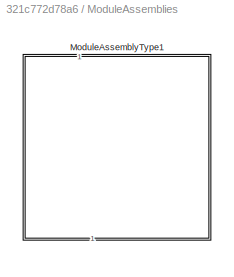
BLOCK [SubSystem] ModuleAssemblies
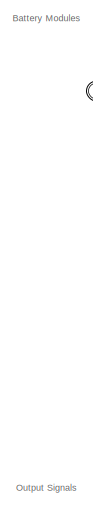
[diagram: ModuleAssemblies/ModuleAssemblyType1 - part 1/5, top left region]
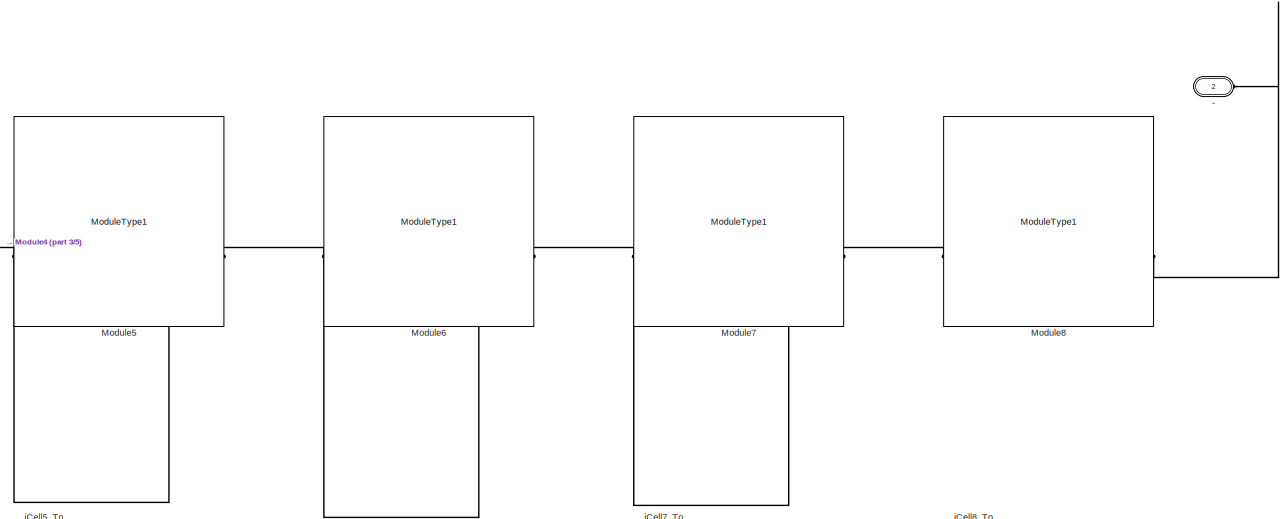
[diagram: ModuleAssemblies/ModuleAssemblyType1 - part 2/5, top right region]
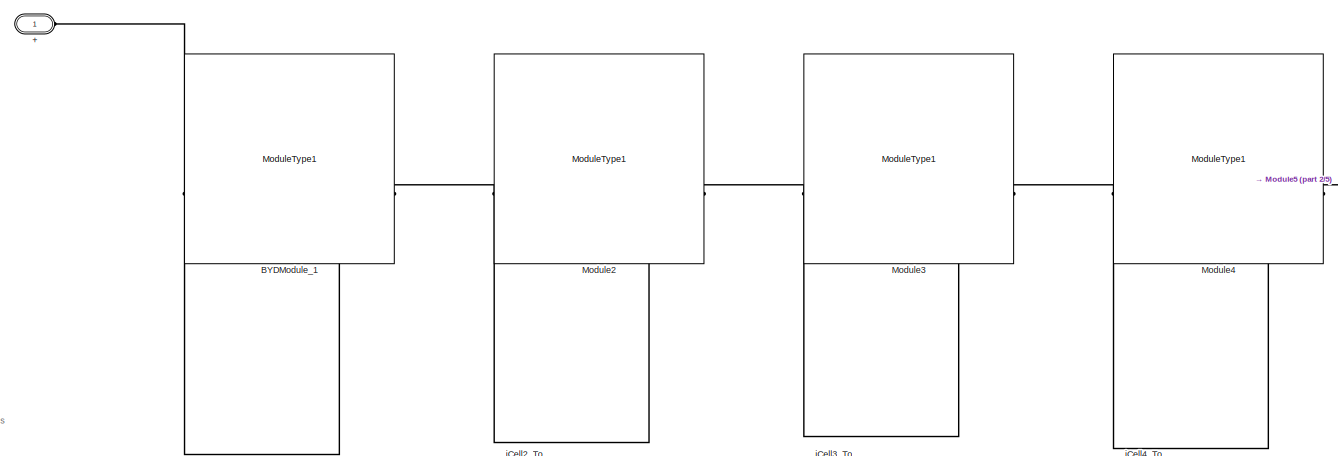
[diagram: ModuleAssemblies/ModuleAssemblyType1 - part 3/5, top left region]
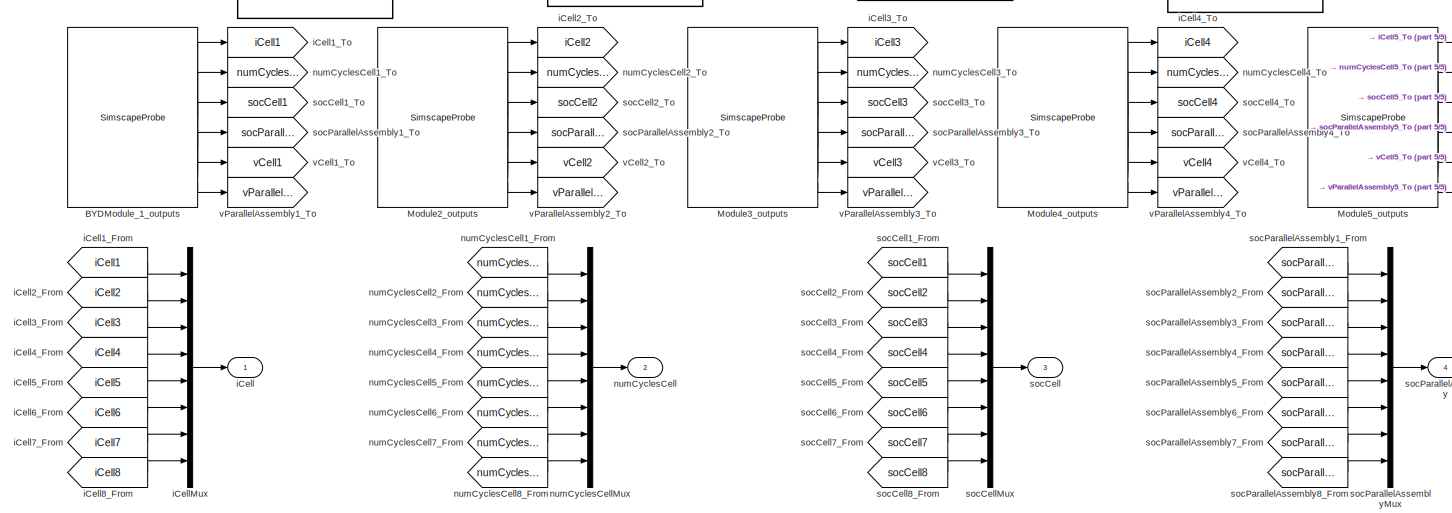
[diagram: ModuleAssemblies/ModuleAssemblyType1 - part 4/5, bottom left region]
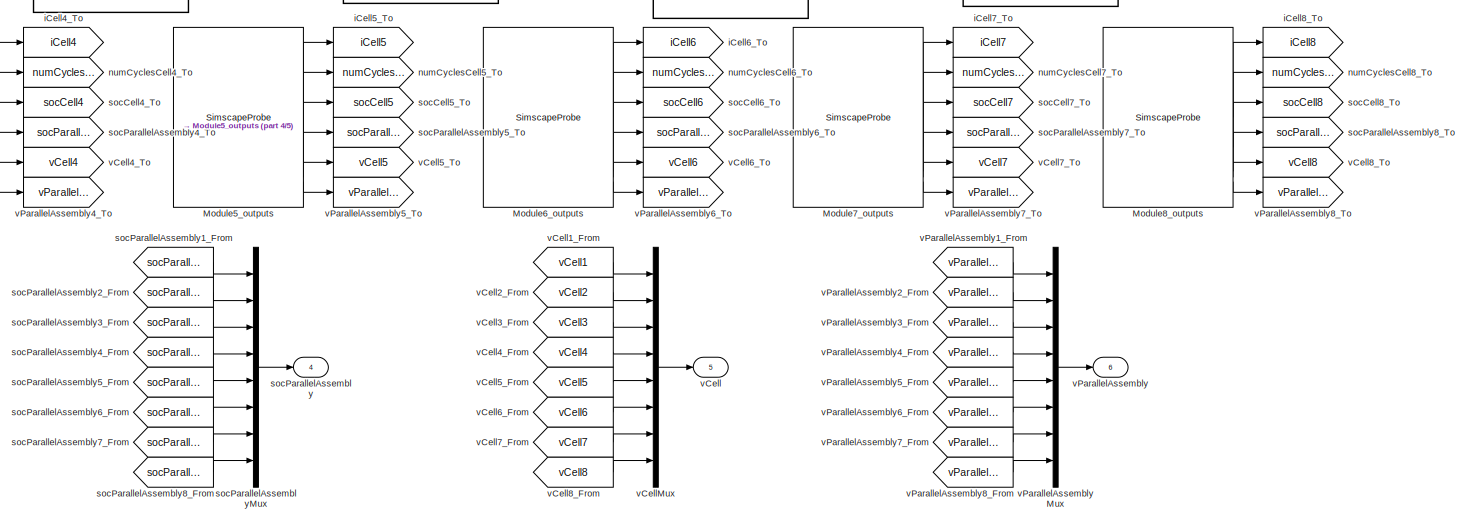
[diagram: ModuleAssemblies/ModuleAssemblyType1 - part 5/5, bottom right region]
BLOCK [SubSystem] ModuleAssemblies/ModuleAssemblyType1
  CopyFcn = battery_builder_rtmsupport('copyfcn',gcbh);
  LoadFcn = battery_builder_rtmsupport('loadfcn',gcbh);
  PreCopyFcn = battery_builder_rtmsupport('precopyfcn',gcbh);
  PreDeleteFcn = battery_builder_rtmsupport('predeletefcn',gcbh);
BLOCK [PMIOPort] ModuleAssemblies/ModuleAssemblyType1/+
  Side = Left
BLOCK [PMIOPort] ModuleAssemblies/ModuleAssemblyType1/-
  Port = 2
  Side = Right
BLOCK [Reference] ModuleAssemblies/ModuleAssemblyType1/BYDModule_1  REF=Batteries_BYD_lib/Modules/ModuleType1
  SourceBlock = Batteries_BYD_lib/Modules/ModuleType1
  SourceType = ModuleType1
BLOCK [SimscapeProbe] ModuleAssemblies/ModuleAssemblyType1/BYDModule_1_outputs
  BoundBlock = 3
  Variables = {"iCell":{"Probing":"ON"},"numCyclesCell":{"Probing":"ON"},"socCell":{"Probing":"ON"},"socParallelAssembly":{"Probing":"ON"},"vCell":{"Probing":"ON"},"vParallelAssembly":{"Probing":"ON"}}
BLOCK [Reference] ModuleAssemblies/ModuleAssemblyType1/Module2  REF=Batteries_BYD_lib/Modules/ModuleType1
  SourceBlock = Batteries_BYD_lib/Modules/ModuleType1
  SourceType = ModuleType1
BLOCK [SimscapeProbe] ModuleAssemblies/ModuleAssemblyType1/Module2_outputs
  BoundBlock = 4
  Variables = {"iCell":{"Probing":"ON"},"numCyclesCell":{"Probing":"ON"},"socCell":{"Probing":"ON"},"socParallelAssembly":{"Probing":"ON"},"vCell":{"Probing":"ON"},"vParallelAssembly":{"Probing":"ON"}}
BLOCK [Reference] ModuleAssemblies/ModuleAssemblyType1/Module3  REF=Batteries_BYD_lib/Modules/ModuleType1
  SourceBlock = Batteries_BYD_lib/Modules/ModuleType1
  SourceType = ModuleType1
BLOCK [SimscapeProbe] ModuleAssemblies/ModuleAssemblyType1/Module3_outputs
  BoundBlock = 5
  Variables = {"iCell":{"Probing":"ON"},"numCyclesCell":{"Probing":"ON"},"socCell":{"Probing":"ON"},"socParallelAssembly":{"Probing":"ON"},"vCell":{"Probing":"ON"},"vParallelAssembly":{"Probing":"ON"}}
BLOCK [Reference] ModuleAssemblies/ModuleAssemblyType1/Module4  REF=Batteries_BYD_lib/Modules/ModuleType1
  SourceBlock = Batteries_BYD_lib/Modules/ModuleType1
  SourceType = ModuleType1
BLOCK [SimscapeProbe] ModuleAssemblies/ModuleAssemblyType1/Module4_outputs
  BoundBlock = 6
  Variables = {"iCell":{"Probing":"ON"},"numCyclesCell":{"Probing":"ON"},"socCell":{"Probing":"ON"},"socParallelAssembly":{"Probing":"ON"},"vCell":{"Probing":"ON"},"vParallelAssembly":{"Probing":"ON"}}
BLOCK [Reference] ModuleAssemblies/ModuleAssemblyType1/Module5  REF=Batteries_BYD_lib/Modules/ModuleType1
  SourceBlock = Batteries_BYD_lib/Modules/ModuleType1
  SourceType = ModuleType1
BLOCK [SimscapeProbe] ModuleAssemblies/ModuleAssemblyType1/Module5_outputs
  BoundBlock = 7
  Variables = {"iCell":{"Probing":"ON"},"numCyclesCell":{"Probing":"ON"},"socCell":{"Probing":"ON"},"socParallelAssembly":{"Probing":"ON"},"vCell":{"Probing":"ON"},"vParallelAssembly":{"Probing":"ON"}}
BLOCK [Reference] ModuleAssemblies/ModuleAssemblyType1/Module6  REF=Batteries_BYD_lib/Modules/ModuleType1
  SourceBlock = Batteries_BYD_lib/Modules/ModuleType1
  SourceType = ModuleType1
BLOCK [SimscapeProbe] ModuleAssemblies/ModuleAssemblyType1/Module6_outputs
  BoundBlock = 8
  Variables = {"iCell":{"Probing":"ON"},"numCyclesCell":{"Probing":"ON"},"socCell":{"Probing":"ON"},"socParallelAssembly":{"Probing":"ON"},"vCell":{"Probing":"ON"},"vParallelAssembly":{"Probing":"ON"}}
BLOCK [Reference] ModuleAssemblies/ModuleAssemblyType1/Module7  REF=Batteries_BYD_lib/Modules/ModuleType1
  SourceBlock = Batteries_BYD_lib/Modules/ModuleType1
  SourceType = ModuleType1
BLOCK [SimscapeProbe] ModuleAssemblies/ModuleAssemblyType1/Module7_outputs
  BoundBlock = 9
  Variables = {"iCell":{"Probing":"ON"},"numCyclesCell":{"Probing":"ON"},"socCell":{"Probing":"ON"},"socParallelAssembly":{"Probing":"ON"},"vCell":{"Probing":"ON"},"vParallelAssembly":{"Probing":"ON"}}
BLOCK [Reference] ModuleAssemblies/ModuleAssemblyType1/Module8  REF=Batteries_BYD_lib/Modules/ModuleType1
  SourceBlock = Batteries_BYD_lib/Modules/ModuleType1
  SourceType = ModuleType1
BLOCK [SimscapeProbe] ModuleAssemblies/ModuleAssemblyType1/Module8_outputs
  BoundBlock = 10
  Variables = {"iCell":{"Probing":"ON"},"numCyclesCell":{"Probing":"ON"},"socCell":{"Probing":"ON"},"socParallelAssembly":{"Probing":"ON"},"vCell":{"Probing":"ON"},"vParallelAssembly":{"Probing":"ON"}}
BLOCK [Outport] ModuleAssemblies/ModuleAssemblyType1/iCell
BLOCK [From] ModuleAssemblies/ModuleAssemblyType1/iCell1_From
  GotoTag = iCell1
BLOCK [Goto] ModuleAssemblies/ModuleAssemblyType1/iCell1_To
  GotoTag = iCell1
BLOCK [From] ModuleAssemblies/ModuleAssemblyType1/iCell2_From
  GotoTag = iCell2
BLOCK [Goto] ModuleAssemblies/ModuleAssemblyType1/iCell2_To
  GotoTag = iCell2
BLOCK [From] ModuleAssemblies/ModuleAssemblyType1/iCell3_From
  GotoTag = iCell3
BLOCK [Goto] ModuleAssemblies/ModuleAssemblyType1/iCell3_To
  GotoTag = iCell3
BLOCK [From] ModuleAssemblies/ModuleAssemblyType1/iCell4_From
  GotoTag = iCell4
BLOCK [Goto] ModuleAssemblies/ModuleAssemblyType1/iCell4_To
  GotoTag = iCell4
BLOCK [From] ModuleAssemblies/ModuleAssemblyType1/iCell5_From
  GotoTag = iCell5
BLOCK [Goto] ModuleAssemblies/ModuleAssemblyType1/iCell5_To
  GotoTag = iCell5
BLOCK [From] ModuleAssemblies/ModuleAssemblyType1/iCell6_From
  GotoTag = iCell6
BLOCK [Goto] ModuleAssemblies/ModuleAssemblyType1/iCell6_To
  GotoTag = iCell6
BLOCK [From] ModuleAssemblies/ModuleAssemblyType1/iCell7_From
  GotoTag = iCell7
BLOCK [Goto] ModuleAssemblies/ModuleAssemblyType1/iCell7_To
  GotoTag = iCell7
BLOCK [From] ModuleAssemblies/ModuleAssemblyType1/iCell8_From
  GotoTag = iCell8
BLOCK [Goto] ModuleAssemblies/ModuleAssemblyType1/iCell8_To
  GotoTag = iCell8
BLOCK [Mux] ModuleAssemblies/ModuleAssemblyType1/iCellMux
  DisplayOption = bar
  Inputs = 8
BLOCK [Outport] ModuleAssemblies/ModuleAssemblyType1/numCyclesCell
  Port = 2
BLOCK [From] ModuleAssemblies/ModuleAssemblyType1/numCyclesCell1_From
  GotoTag = numCyclesCell1
BLOCK [Goto] ModuleAssemblies/ModuleAssemblyType1/numCyclesCell1_To
  GotoTag = numCyclesCell1
BLOCK [From] ModuleAssemblies/ModuleAssemblyType1/numCyclesCell2_From
  GotoTag = numCyclesCell2
BLOCK [Goto] ModuleAssemblies/ModuleAssemblyType1/numCyclesCell2_To
  GotoTag = numCyclesCell2
BLOCK [From] ModuleAssemblies/ModuleAssemblyType1/numCyclesCell3_From
  GotoTag = numCyclesCell3
BLOCK [Goto] ModuleAssemblies/ModuleAssemblyType1/numCyclesCell3_To
  GotoTag = numCyclesCell3
BLOCK [From] ModuleAssemblies/ModuleAssemblyType1/numCyclesCell4_From
  GotoTag = numCyclesCell4
BLOCK [Goto] ModuleAssemblies/ModuleAssemblyType1/numCyclesCell4_To
  GotoTag = numCyclesCell4
BLOCK [From] ModuleAssemblies/ModuleAssemblyType1/numCyclesCell5_From
  GotoTag = numCyclesCell5
BLOCK [Goto] ModuleAssemblies/ModuleAssemblyType1/numCyclesCell5_To
  GotoTag = numCyclesCell5
BLOCK [From] ModuleAssemblies/ModuleAssemblyType1/numCyclesCell6_From
  GotoTag = numCyclesCell6
BLOCK [Goto] ModuleAssemblies/ModuleAssemblyType1/numCyclesCell6_To
  GotoTag = numCyclesCell6
BLOCK [From] ModuleAssemblies/ModuleAssemblyType1/numCyclesCell7_From
  GotoTag = numCyclesCell7
BLOCK [Goto] ModuleAssemblies/ModuleAssemblyType1/numCyclesCell7_To
  GotoTag = numCyclesCell7
BLOCK [From] ModuleAssemblies/ModuleAssemblyType1/numCyclesCell8_From
  GotoTag = numCyclesCell8
BLOCK [Goto] ModuleAssemblies/ModuleAssemblyType1/numCyclesCell8_To
  GotoTag = numCyclesCell8
BLOCK [Mux] ModuleAssemblies/ModuleAssemblyType1/numCyclesCellMux
  DisplayOption = bar
  Inputs = 8
BLOCK [Outport] ModuleAssemblies/ModuleAssemblyType1/socCell
  Port = 3
BLOCK [From] ModuleAssemblies/ModuleAssemblyType1/socCell1_From
  GotoTag = socCell1
BLOCK [Goto] ModuleAssemblies/ModuleAssemblyType1/socCell1_To
  GotoTag = socCell1
BLOCK [From] ModuleAssemblies/ModuleAssemblyType1/socCell2_From
  GotoTag = socCell2
BLOCK [Goto] ModuleAssemblies/ModuleAssemblyType1/socCell2_To
  GotoTag = socCell2
BLOCK [From] ModuleAssemblies/ModuleAssemblyType1/socCell3_From
  GotoTag = socCell3
BLOCK [Goto] ModuleAssemblies/ModuleAssemblyType1/socCell3_To
  GotoTag = socCell3
BLOCK [From] ModuleAssemblies/ModuleAssemblyType1/socCell4_From
  GotoTag = socCell4
BLOCK [Goto] ModuleAssemblies/ModuleAssemblyType1/socCell4_To
  GotoTag = socCell4
BLOCK [From] ModuleAssemblies/ModuleAssemblyType1/socCell5_From
  GotoTag = socCell5
BLOCK [Goto] ModuleAssemblies/ModuleAssemblyType1/socCell5_To
  GotoTag = socCell5
BLOCK [From] ModuleAssemblies/ModuleAssemblyType1/socCell6_From
  GotoTag = socCell6
BLOCK [Goto] ModuleAssemblies/ModuleAssemblyType1/socCell6_To
  GotoTag = socCell6
BLOCK [From] ModuleAssemblies/ModuleAssemblyType1/socCell7_From
  GotoTag = socCell7
BLOCK [Goto] ModuleAssemblies/ModuleAssemblyType1/socCell7_To
  GotoTag = socCell7
BLOCK [From] ModuleAssemblies/ModuleAssemblyType1/socCell8_From
  GotoTag = socCell8
BLOCK [Goto] ModuleAssemblies/ModuleAssemblyType1/socCell8_To
  GotoTag = socCell8
BLOCK [Mux] ModuleAssemblies/ModuleAssemblyType1/socCellMux
  DisplayOption = bar
  Inputs = 8
BLOCK [Outport] ModuleAssemblies/ModuleAssemblyType1/socParallelAssembly
  Port = 4
BLOCK [From] ModuleAssemblies/ModuleAssemblyType1/socParallelAssembly1_From
  GotoTag = socParallelAssembly1
BLOCK [Goto] ModuleAssemblies/ModuleAssemblyType1/socParallelAssembly1_To
  GotoTag = socParallelAssembly1
BLOCK [From] ModuleAssemblies/ModuleAssemblyType1/socParallelAssembly2_From
  GotoTag = socParallelAssembly2
BLOCK [Goto] ModuleAssemblies/ModuleAssemblyType1/socParallelAssembly2_To
  GotoTag = socParallelAssembly2
BLOCK [From] ModuleAssemblies/ModuleAssemblyType1/socParallelAssembly3_From
  GotoTag = socParallelAssembly3
BLOCK [Goto] ModuleAssemblies/ModuleAssemblyType1/socParallelAssembly3_To
  GotoTag = socParallelAssembly3
BLOCK [From] ModuleAssemblies/ModuleAssemblyType1/socParallelAssembly4_From
  GotoTag = socParallelAssembly4
BLOCK [Goto] ModuleAssemblies/ModuleAssemblyType1/socParallelAssembly4_To
  GotoTag = socParallelAssembly4
BLOCK [From] ModuleAssemblies/ModuleAssemblyType1/socParallelAssembly5_From
  GotoTag = socParallelAssembly5
BLOCK [Goto] ModuleAssemblies/ModuleAssemblyType1/socParallelAssembly5_To
  GotoTag = socParallelAssembly5
BLOCK [From] ModuleAssemblies/ModuleAssemblyType1/socParallelAssembly6_From
  GotoTag = socParallelAssembly6
BLOCK [Goto] ModuleAssemblies/ModuleAssemblyType1/socParallelAssembly6_To
  GotoTag = socParallelAssembly6
BLOCK [From] ModuleAssemblies/ModuleAssemblyType1/socParallelAssembly7_From
  GotoTag = socParallelAssembly7
BLOCK [Goto] ModuleAssemblies/ModuleAssemblyType1/socParallelAssembly7_To
  GotoTag = socParallelAssembly7
BLOCK [From] ModuleAssemblies/ModuleAssemblyType1/socParallelAssembly8_From
  GotoTag = socParallelAssembly8
BLOCK [Goto] ModuleAssemblies/ModuleAssemblyType1/socParallelAssembly8_To
  GotoTag = socParallelAssembly8
BLOCK [Mux] ModuleAssemblies/ModuleAssemblyType1/socParallelAssemblyMux
  DisplayOption = bar
  Inputs = 8
BLOCK [Outport] ModuleAssemblies/ModuleAssemblyType1/vCell
  Port = 5
BLOCK [From] ModuleAssemblies/ModuleAssemblyType1/vCell1_From
  GotoTag = vCell1
BLOCK [Goto] ModuleAssemblies/ModuleAssemblyType1/vCell1_To
  GotoTag = vCell1
BLOCK [From] ModuleAssemblies/ModuleAssemblyType1/vCell2_From
  GotoTag = vCell2
BLOCK [Goto] ModuleAssemblies/ModuleAssemblyType1/vCell2_To
  GotoTag = vCell2
BLOCK [From] ModuleAssemblies/ModuleAssemblyType1/vCell3_From
  GotoTag = vCell3
BLOCK [Goto] ModuleAssemblies/ModuleAssemblyType1/vCell3_To
  GotoTag = vCell3
BLOCK [From] ModuleAssemblies/ModuleAssemblyType1/vCell4_From
  GotoTag = vCell4
BLOCK [Goto] ModuleAssemblies/ModuleAssemblyType1/vCell4_To
  GotoTag = vCell4
BLOCK [From] ModuleAssemblies/ModuleAssemblyType1/vCell5_From
  GotoTag = vCell5
BLOCK [Goto] ModuleAssemblies/ModuleAssemblyType1/vCell5_To
  GotoTag = vCell5
BLOCK [From] ModuleAssemblies/ModuleAssemblyType1/vCell6_From
  GotoTag = vCell6
BLOCK [Goto] ModuleAssemblies/ModuleAssemblyType1/vCell6_To
  GotoTag = vCell6
BLOCK [From] ModuleAssemblies/ModuleAssemblyType1/vCell7_From
  GotoTag = vCell7
BLOCK [Goto] ModuleAssemblies/ModuleAssemblyType1/vCell7_To
  GotoTag = vCell7
BLOCK [From] ModuleAssemblies/ModuleAssemblyType1/vCell8_From
  GotoTag = vCell8
BLOCK [Goto] ModuleAssemblies/ModuleAssemblyType1/vCell8_To
  GotoTag = vCell8
BLOCK [Mux] ModuleAssemblies/ModuleAssemblyType1/vCellMux
  DisplayOption = bar
  Inputs = 8
BLOCK [Outport] ModuleAssemblies/ModuleAssemblyType1/vParallelAssembly
  Port = 6
BLOCK [From] ModuleAssemblies/ModuleAssemblyType1/vParallelAssembly1_From
  GotoTag = vParallelAssembly1
BLOCK [Goto] ModuleAssemblies/ModuleAssemblyType1/vParallelAssembly1_To
  GotoTag = vParallelAssembly1
BLOCK [From] ModuleAssemblies/ModuleAssemblyType1/vParallelAssembly2_From
  GotoTag = vParallelAssembly2
BLOCK [Goto] ModuleAssemblies/ModuleAssemblyType1/vParallelAssembly2_To
  GotoTag = vParallelAssembly2
BLOCK [From] ModuleAssemblies/ModuleAssemblyType1/vParallelAssembly3_From
  GotoTag = vParallelAssembly3
BLOCK [Goto] ModuleAssemblies/ModuleAssemblyType1/vParallelAssembly3_To
  GotoTag = vParallelAssembly3
BLOCK [From] ModuleAssemblies/ModuleAssemblyType1/vParallelAssembly4_From
  GotoTag = vParallelAssembly4
BLOCK [Goto] ModuleAssemblies/ModuleAssemblyType1/vParallelAssembly4_To
  GotoTag = vParallelAssembly4
BLOCK [From] ModuleAssemblies/ModuleAssemblyType1/vParallelAssembly5_From
  GotoTag = vParallelAssembly5
BLOCK [Goto] ModuleAssemblies/ModuleAssemblyType1/vParallelAssembly5_To
  GotoTag = vParallelAssembly5
BLOCK [From] ModuleAssemblies/ModuleAssemblyType1/vParallelAssembly6_From
  GotoTag = vParallelAssembly6
BLOCK [Goto] ModuleAssemblies/ModuleAssemblyType1/vParallelAssembly6_To
  GotoTag = vParallelAssembly6
BLOCK [From] ModuleAssemblies/ModuleAssemblyType1/vParallelAssembly7_From
  GotoTag = vParallelAssembly7
BLOCK [Goto] ModuleAssemblies/ModuleAssemblyType1/vParallelAssembly7_To
  GotoTag = vParallelAssembly7
BLOCK [From] ModuleAssemblies/ModuleAssemblyType1/vParallelAssembly8_From
  GotoTag = vParallelAssembly8
BLOCK [Goto] ModuleAssemblies/ModuleAssemblyType1/vParallelAssembly8_To
  GotoTag = vParallelAssembly8
BLOCK [Mux] ModuleAssemblies/ModuleAssemblyType1/vParallelAssemblyMux
  DisplayOption = bar
  Inputs = 8
ANNOTATION BYDPack: Battery Module Assemblies
ANNOTATION BYDPack: Output Signals
ANNOTATION BYDPack/BYDModuleAssembly: Battery Modules
ANNOTATION BYDPack/BYDModuleAssembly: Output Signals
ANNOTATION BYDPack/ModuleAssembly2: Battery Modules
ANNOTATION BYDPack/ModuleAssembly2: Output Signals
ANNOTATION ModuleAssemblies/ModuleAssemblyType1: Battery Modules
ANNOTATION ModuleAssemblies/ModuleAssemblyType1: Output Signals
LINE BYDPack/BYDModuleAssembly/BYDModule_1_outputs:1 -> BYDPack/BYDModuleAssembly/iCell1_To:1
LINE BYDPack/BYDModuleAssembly/BYDModule_1_outputs:2 -> BYDPack/BYDModuleAssembly/numCyclesCell1_To:1
LINE BYDPack/BYDModuleAssembly/BYDModule_1_outputs:3 -> BYDPack/BYDModuleAssembly/socCell1_To:1
LINE BYDPack/BYDModuleAssembly/BYDModule_1_outputs:4 -> BYDPack/BYDModuleAssembly/socParallelAssembly1_To:1
LINE BYDPack/BYDModuleAssembly/BYDModule_1_outputs:5 -> BYDPack/BYDModuleAssembly/vCell1_To:1
LINE BYDPack/BYDModuleAssembly/BYDModule_1_outputs:6 -> BYDPack/BYDModuleAssembly/vParallelAssembly1_To:1
LINE BYDPack/BYDModuleAssembly/Module2_outputs:1 -> BYDPack/BYDModuleAssembly/iCell2_To:1
LINE BYDPack/BYDModuleAssembly/Module2_outputs:2 -> BYDPack/BYDModuleAssembly/numCyclesCell2_To:1
LINE BYDPack/BYDModuleAssembly/Module2_outputs:3 -> BYDPack/BYDModuleAssembly/socCell2_To:1
LINE BYDPack/BYDModuleAssembly/Module2_outputs:4 -> BYDPack/BYDModuleAssembly/socParallelAssembly2_To:1
LINE BYDPack/BYDModuleAssembly/Module2_outputs:5 -> BYDPack/BYDModuleAssembly/vCell2_To:1
LINE BYDPack/BYDModuleAssembly/Module2_outputs:6 -> BYDPack/BYDModuleAssembly/vParallelAssembly2_To:1
LINE BYDPack/BYDModuleAssembly/Module3_outputs:1 -> BYDPack/BYDModuleAssembly/iCell3_To:1
LINE BYDPack/BYDModuleAssembly/Module3_outputs:2 -> BYDPack/BYDModuleAssembly/numCyclesCell3_To:1
LINE BYDPack/BYDModuleAssembly/Module3_outputs:3 -> BYDPack/BYDModuleAssembly/socCell3_To:1
LINE BYDPack/BYDModuleAssembly/Module3_outputs:4 -> BYDPack/BYDModuleAssembly/socParallelAssembly3_To:1
LINE BYDPack/BYDModuleAssembly/Module3_outputs:5 -> BYDPack/BYDModuleAssembly/vCell3_To:1
LINE BYDPack/BYDModuleAssembly/Module3_outputs:6 -> BYDPack/BYDModuleAssembly/vParallelAssembly3_To:1
LINE BYDPack/BYDModuleAssembly/Module4_outputs:1 -> BYDPack/BYDModuleAssembly/iCell4_To:1
LINE BYDPack/BYDModuleAssembly/Module4_outputs:2 -> BYDPack/BYDModuleAssembly/numCyclesCell4_To:1
LINE BYDPack/BYDModuleAssembly/Module4_outputs:3 -> BYDPack/BYDModuleAssembly/socCell4_To:1
LINE BYDPack/BYDModuleAssembly/Module4_outputs:4 -> BYDPack/BYDModuleAssembly/socParallelAssembly4_To:1
LINE BYDPack/BYDModuleAssembly/Module4_outputs:5 -> BYDPack/BYDModuleAssembly/vCell4_To:1
LINE BYDPack/BYDModuleAssembly/Module4_outputs:6 -> BYDPack/BYDModuleAssembly/vParallelAssembly4_To:1
LINE BYDPack/BYDModuleAssembly/Module5_outputs:1 -> BYDPack/BYDModuleAssembly/iCell5_To:1
LINE BYDPack/BYDModuleAssembly/Module5_outputs:2 -> BYDPack/BYDModuleAssembly/numCyclesCell5_To:1
LINE BYDPack/BYDModuleAssembly/Module5_outputs:3 -> BYDPack/BYDModuleAssembly/socCell5_To:1
LINE BYDPack/BYDModuleAssembly/Module5_outputs:4 -> BYDPack/BYDModuleAssembly/socParallelAssembly5_To:1
LINE BYDPack/BYDModuleAssembly/Module5_outputs:5 -> BYDPack/BYDModuleAssembly/vCell5_To:1
LINE BYDPack/BYDModuleAssembly/Module5_outputs:6 -> BYDPack/BYDModuleAssembly/vParallelAssembly5_To:1
LINE BYDPack/BYDModuleAssembly/Module6_outputs:1 -> BYDPack/BYDModuleAssembly/iCell6_To:1
LINE BYDPack/BYDModuleAssembly/Module6_outputs:2 -> BYDPack/BYDModuleAssembly/numCyclesCell6_To:1
LINE BYDPack/BYDModuleAssembly/Module6_outputs:3 -> BYDPack/BYDModuleAssembly/socCell6_To:1
LINE BYDPack/BYDModuleAssembly/Module6_outputs:4 -> BYDPack/BYDModuleAssembly/socParallelAssembly6_To:1
LINE BYDPack/BYDModuleAssembly/Module6_outputs:5 -> BYDPack/BYDModuleAssembly/vCell6_To:1
LINE BYDPack/BYDModuleAssembly/Module6_outputs:6 -> BYDPack/BYDModuleAssembly/vParallelAssembly6_To:1
LINE BYDPack/BYDModuleAssembly/Module7_outputs:1 -> BYDPack/BYDModuleAssembly/iCell7_To:1
LINE BYDPack/BYDModuleAssembly/Module7_outputs:2 -> BYDPack/BYDModuleAssembly/numCyclesCell7_To:1
LINE BYDPack/BYDModuleAssembly/Module7_outputs:3 -> BYDPack/BYDModuleAssembly/socCell7_To:1
LINE BYDPack/BYDModuleAssembly/Module7_outputs:4 -> BYDPack/BYDModuleAssembly/socParallelAssembly7_To:1
LINE BYDPack/BYDModuleAssembly/Module7_outputs:5 -> BYDPack/BYDModuleAssembly/vCell7_To:1
LINE BYDPack/BYDModuleAssembly/Module7_outputs:6 -> BYDPack/BYDModuleAssembly/vParallelAssembly7_To:1
LINE BYDPack/BYDModuleAssembly/Module8_outputs:1 -> BYDPack/BYDModuleAssembly/iCell8_To:1
LINE BYDPack/BYDModuleAssembly/Module8_outputs:2 -> BYDPack/BYDModuleAssembly/numCyclesCell8_To:1
LINE BYDPack/BYDModuleAssembly/Module8_outputs:3 -> BYDPack/BYDModuleAssembly/socCell8_To:1
LINE BYDPack/BYDModuleAssembly/Module8_outputs:4 -> BYDPack/BYDModuleAssembly/socParallelAssembly8_To:1
LINE BYDPack/BYDModuleAssembly/Module8_outputs:5 -> BYDPack/BYDModuleAssembly/vCell8_To:1
LINE BYDPack/BYDModuleAssembly/Module8_outputs:6 -> BYDPack/BYDModuleAssembly/vParallelAssembly8_To:1
LINE BYDPack/BYDModuleAssembly/iCell1_From:1 -> BYDPack/BYDModuleAssembly/iCellMux:1
LINE BYDPack/BYDModuleAssembly/iCell2_From:1 -> BYDPack/BYDModuleAssembly/iCellMux:2
LINE BYDPack/BYDModuleAssembly/iCell3_From:1 -> BYDPack/BYDModuleAssembly/iCellMux:3
LINE BYDPack/BYDModuleAssembly/iCell4_From:1 -> BYDPack/BYDModuleAssembly/iCellMux:4
LINE BYDPack/BYDModuleAssembly/iCell5_From:1 -> BYDPack/BYDModuleAssembly/iCellMux:5
LINE BYDPack/BYDModuleAssembly/iCell6_From:1 -> BYDPack/BYDModuleAssembly/iCellMux:6
LINE BYDPack/BYDModuleAssembly/iCell7_From:1 -> BYDPack/BYDModuleAssembly/iCellMux:7
LINE BYDPack/BYDModuleAssembly/iCell8_From:1 -> BYDPack/BYDModuleAssembly/iCellMux:8
LINE BYDPack/BYDModuleAssembly/iCellMux:1 -> BYDPack/BYDModuleAssembly/iCell:1
LINE BYDPack/BYDModuleAssembly/numCyclesCell1_From:1 -> BYDPack/BYDModuleAssembly/numCyclesCellMux:1
LINE BYDPack/BYDModuleAssembly/numCyclesCell2_From:1 -> BYDPack/BYDModuleAssembly/numCyclesCellMux:2
LINE BYDPack/BYDModuleAssembly/numCyclesCell3_From:1 -> BYDPack/BYDModuleAssembly/numCyclesCellMux:3
LINE BYDPack/BYDModuleAssembly/numCyclesCell4_From:1 -> BYDPack/BYDModuleAssembly/numCyclesCellMux:4
LINE BYDPack/BYDModuleAssembly/numCyclesCell5_From:1 -> BYDPack/BYDModuleAssembly/numCyclesCellMux:5
LINE BYDPack/BYDModuleAssembly/numCyclesCell6_From:1 -> BYDPack/BYDModuleAssembly/numCyclesCellMux:6
LINE BYDPack/BYDModuleAssembly/numCyclesCell7_From:1 -> BYDPack/BYDModuleAssembly/numCyclesCellMux:7
LINE BYDPack/BYDModuleAssembly/numCyclesCell8_From:1 -> BYDPack/BYDModuleAssembly/numCyclesCellMux:8
LINE BYDPack/BYDModuleAssembly/numCyclesCellMux:1 -> BYDPack/BYDModuleAssembly/numCyclesCell:1
LINE BYDPack/BYDModuleAssembly/socCell1_From:1 -> BYDPack/BYDModuleAssembly/socCellMux:1
LINE BYDPack/BYDModuleAssembly/socCell2_From:1 -> BYDPack/BYDModuleAssembly/socCellMux:2
LINE BYDPack/BYDModuleAssembly/socCell3_From:1 -> BYDPack/BYDModuleAssembly/socCellMux:3
LINE BYDPack/BYDModuleAssembly/socCell4_From:1 -> BYDPack/BYDModuleAssembly/socCellMux:4
LINE BYDPack/BYDModuleAssembly/socCell5_From:1 -> BYDPack/BYDModuleAssembly/socCellMux:5
LINE BYDPack/BYDModuleAssembly/socCell6_From:1 -> BYDPack/BYDModuleAssembly/socCellMux:6
LINE BYDPack/BYDModuleAssembly/socCell7_From:1 -> BYDPack/BYDModuleAssembly/socCellMux:7
LINE BYDPack/BYDModuleAssembly/socCell8_From:1 -> BYDPack/BYDModuleAssembly/socCellMux:8
LINE BYDPack/BYDModuleAssembly/socCellMux:1 -> BYDPack/BYDModuleAssembly/socCell:1
LINE BYDPack/BYDModuleAssembly/socParallelAssembly1_From:1 -> BYDPack/BYDModuleAssembly/socParallelAssemblyMux:1
LINE BYDPack/BYDModuleAssembly/socParallelAssembly2_From:1 -> BYDPack/BYDModuleAssembly/socParallelAssemblyMux:2
LINE BYDPack/BYDModuleAssembly/socParallelAssembly3_From:1 -> BYDPack/BYDModuleAssembly/socParallelAssemblyMux:3
LINE BYDPack/BYDModuleAssembly/socParallelAssembly4_From:1 -> BYDPack/BYDModuleAssembly/socParallelAssemblyMux:4
LINE BYDPack/BYDModuleAssembly/socParallelAssembly5_From:1 -> BYDPack/BYDModuleAssembly/socParallelAssemblyMux:5
LINE BYDPack/BYDModuleAssembly/socParallelAssembly6_From:1 -> BYDPack/BYDModuleAssembly/socParallelAssemblyMux:6
LINE BYDPack/BYDModuleAssembly/socParallelAssembly7_From:1 -> BYDPack/BYDModuleAssembly/socParallelAssemblyMux:7
LINE BYDPack/BYDModuleAssembly/socParallelAssembly8_From:1 -> BYDPack/BYDModuleAssembly/socParallelAssemblyMux:8
LINE BYDPack/BYDModuleAssembly/socParallelAssemblyMux:1 -> BYDPack/BYDModuleAssembly/socParallelAssembly:1
LINE BYDPack/BYDModuleAssembly/vCell1_From:1 -> BYDPack/BYDModuleAssembly/vCellMux:1
LINE BYDPack/BYDModuleAssembly/vCell2_From:1 -> BYDPack/BYDModuleAssembly/vCellMux:2
LINE BYDPack/BYDModuleAssembly/vCell3_From:1 -> BYDPack/BYDModuleAssembly/vCellMux:3
LINE BYDPack/BYDModuleAssembly/vCell4_From:1 -> BYDPack/BYDModuleAssembly/vCellMux:4
LINE BYDPack/BYDModuleAssembly/vCell5_From:1 -> BYDPack/BYDModuleAssembly/vCellMux:5
LINE BYDPack/BYDModuleAssembly/vCell6_From:1 -> BYDPack/BYDModuleAssembly/vCellMux:6
LINE BYDPack/BYDModuleAssembly/vCell7_From:1 -> BYDPack/BYDModuleAssembly/vCellMux:7
LINE BYDPack/BYDModuleAssembly/vCell8_From:1 -> BYDPack/BYDModuleAssembly/vCellMux:8
LINE BYDPack/BYDModuleAssembly/vCellMux:1 -> BYDPack/BYDModuleAssembly/vCell:1
LINE BYDPack/BYDModuleAssembly/vParallelAssembly1_From:1 -> BYDPack/BYDModuleAssembly/vParallelAssemblyMux:1
LINE BYDPack/BYDModuleAssembly/vParallelAssembly2_From:1 -> BYDPack/BYDModuleAssembly/vParallelAssemblyMux:2
LINE BYDPack/BYDModuleAssembly/vParallelAssembly3_From:1 -> BYDPack/BYDModuleAssembly/vParallelAssemblyMux:3
LINE BYDPack/BYDModuleAssembly/vParallelAssembly4_From:1 -> BYDPack/BYDModuleAssembly/vParallelAssemblyMux:4
LINE BYDPack/BYDModuleAssembly/vParallelAssembly5_From:1 -> BYDPack/BYDModuleAssembly/vParallelAssemblyMux:5
LINE BYDPack/BYDModuleAssembly/vParallelAssembly6_From:1 -> BYDPack/BYDModuleAssembly/vParallelAssemblyMux:6
LINE BYDPack/BYDModuleAssembly/vParallelAssembly7_From:1 -> BYDPack/BYDModuleAssembly/vParallelAssemblyMux:7
LINE BYDPack/BYDModuleAssembly/vParallelAssembly8_From:1 -> BYDPack/BYDModuleAssembly/vParallelAssemblyMux:8
LINE BYDPack/BYDModuleAssembly/vParallelAssemblyMux:1 -> BYDPack/BYDModuleAssembly/vParallelAssembly:1
LINE BYDPack/BYDModuleAssembly:1 -> BYDPack/iCellTo1:1
LINE BYDPack/BYDModuleAssembly:2 -> BYDPack/numCyclesCellTo1:1
LINE BYDPack/BYDModuleAssembly:3 -> BYDPack/socCellTo1:1
LINE BYDPack/BYDModuleAssembly:4 -> BYDPack/socParallelAssemblyTo1:1
LINE BYDPack/BYDModuleAssembly:5 -> BYDPack/vCellTo1:1
LINE BYDPack/BYDModuleAssembly:6 -> BYDPack/vParallelAssemblyTo1:1
LINE BYDPack/ModuleAssembly2/BYDModule_1_outputs:1 -> BYDPack/ModuleAssembly2/iCell1_To:1
LINE BYDPack/ModuleAssembly2/BYDModule_1_outputs:2 -> BYDPack/ModuleAssembly2/numCyclesCell1_To:1
LINE BYDPack/ModuleAssembly2/BYDModule_1_outputs:3 -> BYDPack/ModuleAssembly2/socCell1_To:1
LINE BYDPack/ModuleAssembly2/BYDModule_1_outputs:4 -> BYDPack/ModuleAssembly2/socParallelAssembly1_To:1
LINE BYDPack/ModuleAssembly2/BYDModule_1_outputs:5 -> BYDPack/ModuleAssembly2/vCell1_To:1
LINE BYDPack/ModuleAssembly2/BYDModule_1_outputs:6 -> BYDPack/ModuleAssembly2/vParallelAssembly1_To:1
LINE BYDPack/ModuleAssembly2/Module2_outputs:1 -> BYDPack/ModuleAssembly2/iCell2_To:1
LINE BYDPack/ModuleAssembly2/Module2_outputs:2 -> BYDPack/ModuleAssembly2/numCyclesCell2_To:1
LINE BYDPack/ModuleAssembly2/Module2_outputs:3 -> BYDPack/ModuleAssembly2/socCell2_To:1
LINE BYDPack/ModuleAssembly2/Module2_outputs:4 -> BYDPack/ModuleAssembly2/socParallelAssembly2_To:1
LINE BYDPack/ModuleAssembly2/Module2_outputs:5 -> BYDPack/ModuleAssembly2/vCell2_To:1
LINE BYDPack/ModuleAssembly2/Module2_outputs:6 -> BYDPack/ModuleAssembly2/vParallelAssembly2_To:1
LINE BYDPack/ModuleAssembly2/Module3_outputs:1 -> BYDPack/ModuleAssembly2/iCell3_To:1
LINE BYDPack/ModuleAssembly2/Module3_outputs:2 -> BYDPack/ModuleAssembly2/numCyclesCell3_To:1
LINE BYDPack/ModuleAssembly2/Module3_outputs:3 -> BYDPack/ModuleAssembly2/socCell3_To:1
LINE BYDPack/ModuleAssembly2/Module3_outputs:4 -> BYDPack/ModuleAssembly2/socParallelAssembly3_To:1
LINE BYDPack/ModuleAssembly2/Module3_outputs:5 -> BYDPack/ModuleAssembly2/vCell3_To:1
LINE BYDPack/ModuleAssembly2/Module3_outputs:6 -> BYDPack/ModuleAssembly2/vParallelAssembly3_To:1
LINE BYDPack/ModuleAssembly2/Module4_outputs:1 -> BYDPack/ModuleAssembly2/iCell4_To:1
LINE BYDPack/ModuleAssembly2/Module4_outputs:2 -> BYDPack/ModuleAssembly2/numCyclesCell4_To:1
LINE BYDPack/ModuleAssembly2/Module4_outputs:3 -> BYDPack/ModuleAssembly2/socCell4_To:1
LINE BYDPack/ModuleAssembly2/Module4_outputs:4 -> BYDPack/ModuleAssembly2/socParallelAssembly4_To:1
LINE BYDPack/ModuleAssembly2/Module4_outputs:5 -> BYDPack/ModuleAssembly2/vCell4_To:1
LINE BYDPack/ModuleAssembly2/Module4_outputs:6 -> BYDPack/ModuleAssembly2/vParallelAssembly4_To:1
LINE BYDPack/ModuleAssembly2/Module5_outputs:1 -> BYDPack/ModuleAssembly2/iCell5_To:1
LINE BYDPack/ModuleAssembly2/Module5_outputs:2 -> BYDPack/ModuleAssembly2/numCyclesCell5_To:1
LINE BYDPack/ModuleAssembly2/Module5_outputs:3 -> BYDPack/ModuleAssembly2/socCell5_To:1
LINE BYDPack/ModuleAssembly2/Module5_outputs:4 -> BYDPack/ModuleAssembly2/socParallelAssembly5_To:1
LINE BYDPack/ModuleAssembly2/Module5_outputs:5 -> BYDPack/ModuleAssembly2/vCell5_To:1
LINE BYDPack/ModuleAssembly2/Module5_outputs:6 -> BYDPack/ModuleAssembly2/vParallelAssembly5_To:1
LINE BYDPack/ModuleAssembly2/Module6_outputs:1 -> BYDPack/ModuleAssembly2/iCell6_To:1
LINE BYDPack/ModuleAssembly2/Module6_outputs:2 -> BYDPack/ModuleAssembly2/numCyclesCell6_To:1
LINE BYDPack/ModuleAssembly2/Module6_outputs:3 -> BYDPack/ModuleAssembly2/socCell6_To:1
LINE BYDPack/ModuleAssembly2/Module6_outputs:4 -> BYDPack/ModuleAssembly2/socParallelAssembly6_To:1
LINE BYDPack/ModuleAssembly2/Module6_outputs:5 -> BYDPack/ModuleAssembly2/vCell6_To:1
LINE BYDPack/ModuleAssembly2/Module6_outputs:6 -> BYDPack/ModuleAssembly2/vParallelAssembly6_To:1
LINE BYDPack/ModuleAssembly2/Module7_outputs:1 -> BYDPack/ModuleAssembly2/iCell7_To:1
LINE BYDPack/ModuleAssembly2/Module7_outputs:2 -> BYDPack/ModuleAssembly2/numCyclesCell7_To:1
LINE BYDPack/ModuleAssembly2/Module7_outputs:3 -> BYDPack/ModuleAssembly2/socCell7_To:1
LINE BYDPack/ModuleAssembly2/Module7_outputs:4 -> BYDPack/ModuleAssembly2/socParallelAssembly7_To:1
LINE BYDPack/ModuleAssembly2/Module7_outputs:5 -> BYDPack/ModuleAssembly2/vCell7_To:1
LINE BYDPack/ModuleAssembly2/Module7_outputs:6 -> BYDPack/ModuleAssembly2/vParallelAssembly7_To:1
LINE BYDPack/ModuleAssembly2/Module8_outputs:1 -> BYDPack/ModuleAssembly2/iCell8_To:1
LINE BYDPack/ModuleAssembly2/Module8_outputs:2 -> BYDPack/ModuleAssembly2/numCyclesCell8_To:1
LINE BYDPack/ModuleAssembly2/Module8_outputs:3 -> BYDPack/ModuleAssembly2/socCell8_To:1
LINE BYDPack/ModuleAssembly2/Module8_outputs:4 -> BYDPack/ModuleAssembly2/socParallelAssembly8_To:1
LINE BYDPack/ModuleAssembly2/Module8_outputs:5 -> BYDPack/ModuleAssembly2/vCell8_To:1
LINE BYDPack/ModuleAssembly2/Module8_outputs:6 -> BYDPack/ModuleAssembly2/vParallelAssembly8_To:1
LINE BYDPack/ModuleAssembly2/iCell1_From:1 -> BYDPack/ModuleAssembly2/iCellMux:1
LINE BYDPack/ModuleAssembly2/iCell2_From:1 -> BYDPack/ModuleAssembly2/iCellMux:2
LINE BYDPack/ModuleAssembly2/iCell3_From:1 -> BYDPack/ModuleAssembly2/iCellMux:3
LINE BYDPack/ModuleAssembly2/iCell4_From:1 -> BYDPack/ModuleAssembly2/iCellMux:4
LINE BYDPack/ModuleAssembly2/iCell5_From:1 -> BYDPack/ModuleAssembly2/iCellMux:5
LINE BYDPack/ModuleAssembly2/iCell6_From:1 -> BYDPack/ModuleAssembly2/iCellMux:6
LINE BYDPack/ModuleAssembly2/iCell7_From:1 -> BYDPack/ModuleAssembly2/iCellMux:7
LINE BYDPack/ModuleAssembly2/iCell8_From:1 -> BYDPack/ModuleAssembly2/iCellMux:8
LINE BYDPack/ModuleAssembly2/iCellMux:1 -> BYDPack/ModuleAssembly2/iCell:1
LINE BYDPack/ModuleAssembly2/numCyclesCell1_From:1 -> BYDPack/ModuleAssembly2/numCyclesCellMux:1
LINE BYDPack/ModuleAssembly2/numCyclesCell2_From:1 -> BYDPack/ModuleAssembly2/numCyclesCellMux:2
LINE BYDPack/ModuleAssembly2/numCyclesCell3_From:1 -> BYDPack/ModuleAssembly2/numCyclesCellMux:3
LINE BYDPack/ModuleAssembly2/numCyclesCell4_From:1 -> BYDPack/ModuleAssembly2/numCyclesCellMux:4
LINE BYDPack/ModuleAssembly2/numCyclesCell5_From:1 -> BYDPack/ModuleAssembly2/numCyclesCellMux:5
LINE BYDPack/ModuleAssembly2/numCyclesCell6_From:1 -> BYDPack/ModuleAssembly2/numCyclesCellMux:6
LINE BYDPack/ModuleAssembly2/numCyclesCell7_From:1 -> BYDPack/ModuleAssembly2/numCyclesCellMux:7
LINE BYDPack/ModuleAssembly2/numCyclesCell8_From:1 -> BYDPack/ModuleAssembly2/numCyclesCellMux:8
LINE BYDPack/ModuleAssembly2/numCyclesCellMux:1 -> BYDPack/ModuleAssembly2/numCyclesCell:1
LINE BYDPack/ModuleAssembly2/socCell1_From:1 -> BYDPack/ModuleAssembly2/socCellMux:1
LINE BYDPack/ModuleAssembly2/socCell2_From:1 -> BYDPack/ModuleAssembly2/socCellMux:2
LINE BYDPack/ModuleAssembly2/socCell3_From:1 -> BYDPack/ModuleAssembly2/socCellMux:3
LINE BYDPack/ModuleAssembly2/socCell4_From:1 -> BYDPack/ModuleAssembly2/socCellMux:4
LINE BYDPack/ModuleAssembly2/socCell5_From:1 -> BYDPack/ModuleAssembly2/socCellMux:5
LINE BYDPack/ModuleAssembly2/socCell6_From:1 -> BYDPack/ModuleAssembly2/socCellMux:6
LINE BYDPack/ModuleAssembly2/socCell7_From:1 -> BYDPack/ModuleAssembly2/socCellMux:7
LINE BYDPack/ModuleAssembly2/socCell8_From:1 -> BYDPack/ModuleAssembly2/socCellMux:8
LINE BYDPack/ModuleAssembly2/socCellMux:1 -> BYDPack/ModuleAssembly2/socCell:1
LINE BYDPack/ModuleAssembly2/socParallelAssembly1_From:1 -> BYDPack/ModuleAssembly2/socParallelAssemblyMux:1
LINE BYDPack/ModuleAssembly2/socParallelAssembly2_From:1 -> BYDPack/ModuleAssembly2/socParallelAssemblyMux:2
LINE BYDPack/ModuleAssembly2/socParallelAssembly3_From:1 -> BYDPack/ModuleAssembly2/socParallelAssemblyMux:3
LINE BYDPack/ModuleAssembly2/socParallelAssembly4_From:1 -> BYDPack/ModuleAssembly2/socParallelAssemblyMux:4
LINE BYDPack/ModuleAssembly2/socParallelAssembly5_From:1 -> BYDPack/ModuleAssembly2/socParallelAssemblyMux:5
LINE BYDPack/ModuleAssembly2/socParallelAssembly6_From:1 -> BYDPack/ModuleAssembly2/socParallelAssemblyMux:6
LINE BYDPack/ModuleAssembly2/socParallelAssembly7_From:1 -> BYDPack/ModuleAssembly2/socParallelAssemblyMux:7
LINE BYDPack/ModuleAssembly2/socParallelAssembly8_From:1 -> BYDPack/ModuleAssembly2/socParallelAssemblyMux:8
LINE BYDPack/ModuleAssembly2/socParallelAssemblyMux:1 -> BYDPack/ModuleAssembly2/socParallelAssembly:1
LINE BYDPack/ModuleAssembly2/vCell1_From:1 -> BYDPack/ModuleAssembly2/vCellMux:1
LINE BYDPack/ModuleAssembly2/vCell2_From:1 -> BYDPack/ModuleAssembly2/vCellMux:2
LINE BYDPack/ModuleAssembly2/vCell3_From:1 -> BYDPack/ModuleAssembly2/vCellMux:3
LINE BYDPack/ModuleAssembly2/vCell4_From:1 -> BYDPack/ModuleAssembly2/vCellMux:4
LINE BYDPack/ModuleAssembly2/vCell5_From:1 -> BYDPack/ModuleAssembly2/vCellMux:5
LINE BYDPack/ModuleAssembly2/vCell6_From:1 -> BYDPack/ModuleAssembly2/vCellMux:6
LINE BYDPack/ModuleAssembly2/vCell7_From:1 -> BYDPack/ModuleAssembly2/vCellMux:7
LINE BYDPack/ModuleAssembly2/vCell8_From:1 -> BYDPack/ModuleAssembly2/vCellMux:8
LINE BYDPack/ModuleAssembly2/vCellMux:1 -> BYDPack/ModuleAssembly2/vCell:1
LINE BYDPack/ModuleAssembly2/vParallelAssembly1_From:1 -> BYDPack/ModuleAssembly2/vParallelAssemblyMux:1
LINE BYDPack/ModuleAssembly2/vParallelAssembly2_From:1 -> BYDPack/ModuleAssembly2/vParallelAssemblyMux:2
LINE BYDPack/ModuleAssembly2/vParallelAssembly3_From:1 -> BYDPack/ModuleAssembly2/vParallelAssemblyMux:3
LINE BYDPack/ModuleAssembly2/vParallelAssembly4_From:1 -> BYDPack/ModuleAssembly2/vParallelAssemblyMux:4
LINE BYDPack/ModuleAssembly2/vParallelAssembly5_From:1 -> BYDPack/ModuleAssembly2/vParallelAssemblyMux:5
LINE BYDPack/ModuleAssembly2/vParallelAssembly6_From:1 -> BYDPack/ModuleAssembly2/vParallelAssemblyMux:6
LINE BYDPack/ModuleAssembly2/vParallelAssembly7_From:1 -> BYDPack/ModuleAssembly2/vParallelAssemblyMux:7
LINE BYDPack/ModuleAssembly2/vParallelAssembly8_From:1 -> BYDPack/ModuleAssembly2/vParallelAssemblyMux:8
LINE BYDPack/ModuleAssembly2/vParallelAssemblyMux:1 -> BYDPack/ModuleAssembly2/vParallelAssembly:1
LINE BYDPack/ModuleAssembly2:1 -> BYDPack/iCellTo2:1
LINE BYDPack/ModuleAssembly2:2 -> BYDPack/numCyclesCellTo2:1
LINE BYDPack/ModuleAssembly2:3 -> BYDPack/socCellTo2:1
LINE BYDPack/ModuleAssembly2:4 -> BYDPack/socParallelAssemblyTo2:1
LINE BYDPack/ModuleAssembly2:5 -> BYDPack/vCellTo2:1
LINE BYDPack/ModuleAssembly2:6 -> BYDPack/vParallelAssemblyTo2:1
LINE BYDPack/iCellFrom1:1 -> BYDPack/iCellMux:1
LINE BYDPack/iCellFrom2:1 -> BYDPack/iCellMux:2
LINE BYDPack/iCellMux:1 -> BYDPack/iCell:1
LINE BYDPack/numCyclesCellFrom1:1 -> BYDPack/numCyclesCellMux:1
LINE BYDPack/numCyclesCellFrom2:1 -> BYDPack/numCyclesCellMux:2
LINE BYDPack/numCyclesCellMux:1 -> BYDPack/numCyclesCell:1
LINE BYDPack/socCellFrom1:1 -> BYDPack/socCellMux:1
LINE BYDPack/socCellFrom2:1 -> BYDPack/socCellMux:2
LINE BYDPack/socCellMux:1 -> BYDPack/socCell:1
LINE BYDPack/socParallelAssemblyFrom1:1 -> BYDPack/socParallelAssemblyMux:1
LINE BYDPack/socParallelAssemblyFrom2:1 -> BYDPack/socParallelAssemblyMux:2
LINE BYDPack/socParallelAssemblyMux:1 -> BYDPack/socParallelAssembly:1
LINE BYDPack/vCellFrom1:1 -> BYDPack/vCellMux:1
LINE BYDPack/vCellFrom2:1 -> BYDPack/vCellMux:2
LINE BYDPack/vCellMux:1 -> BYDPack/vCell:1
LINE BYDPack/vParallelAssemblyFrom1:1 -> BYDPack/vParallelAssemblyMux:1
LINE BYDPack/vParallelAssemblyFrom2:1 -> BYDPack/vParallelAssemblyMux:2
LINE BYDPack/vParallelAssemblyMux:1 -> BYDPack/vParallelAssembly:1
LINE ModuleAssemblies/ModuleAssemblyType1/BYDModule_1_outputs:1 -> ModuleAssemblies/ModuleAssemblyType1/iCell1_To:1
LINE ModuleAssemblies/ModuleAssemblyType1/BYDModule_1_outputs:2 -> ModuleAssemblies/ModuleAssemblyType1/numCyclesCell1_To:1
LINE ModuleAssemblies/ModuleAssemblyType1/BYDModule_1_outputs:3 -> ModuleAssemblies/ModuleAssemblyType1/socCell1_To:1
LINE ModuleAssemblies/ModuleAssemblyType1/BYDModule_1_outputs:4 -> ModuleAssemblies/ModuleAssemblyType1/socParallelAssembly1_To:1
LINE ModuleAssemblies/ModuleAssemblyType1/BYDModule_1_outputs:5 -> ModuleAssemblies/ModuleAssemblyType1/vCell1_To:1
LINE ModuleAssemblies/ModuleAssemblyType1/BYDModule_1_outputs:6 -> ModuleAssemblies/ModuleAssemblyType1/vParallelAssembly1_To:1
LINE ModuleAssemblies/ModuleAssemblyType1/Module2_outputs:1 -> ModuleAssemblies/ModuleAssemblyType1/iCell2_To:1
LINE ModuleAssemblies/ModuleAssemblyType1/Module2_outputs:2 -> ModuleAssemblies/ModuleAssemblyType1/numCyclesCell2_To:1
LINE ModuleAssemblies/ModuleAssemblyType1/Module2_outputs:3 -> ModuleAssemblies/ModuleAssemblyType1/socCell2_To:1
LINE ModuleAssemblies/ModuleAssemblyType1/Module2_outputs:4 -> ModuleAssemblies/ModuleAssemblyType1/socParallelAssembly2_To:1
LINE ModuleAssemblies/ModuleAssemblyType1/Module2_outputs:5 -> ModuleAssemblies/ModuleAssemblyType1/vCell2_To:1
LINE ModuleAssemblies/ModuleAssemblyType1/Module2_outputs:6 -> ModuleAssemblies/ModuleAssemblyType1/vParallelAssembly2_To:1
LINE ModuleAssemblies/ModuleAssemblyType1/Module3_outputs:1 -> ModuleAssemblies/ModuleAssemblyType1/iCell3_To:1
LINE ModuleAssemblies/ModuleAssemblyType1/Module3_outputs:2 -> ModuleAssemblies/ModuleAssemblyType1/numCyclesCell3_To:1
LINE ModuleAssemblies/ModuleAssemblyType1/Module3_outputs:3 -> ModuleAssemblies/ModuleAssemblyType1/socCell3_To:1
LINE ModuleAssemblies/ModuleAssemblyType1/Module3_outputs:4 -> ModuleAssemblies/ModuleAssemblyType1/socParallelAssembly3_To:1
LINE ModuleAssemblies/ModuleAssemblyType1/Module3_outputs:5 -> ModuleAssemblies/ModuleAssemblyType1/vCell3_To:1
LINE ModuleAssemblies/ModuleAssemblyType1/Module3_outputs:6 -> ModuleAssemblies/ModuleAssemblyType1/vParallelAssembly3_To:1
LINE ModuleAssemblies/ModuleAssemblyType1/Module4_outputs:1 -> ModuleAssemblies/ModuleAssemblyType1/iCell4_To:1
LINE ModuleAssemblies/ModuleAssemblyType1/Module4_outputs:2 -> ModuleAssemblies/ModuleAssemblyType1/numCyclesCell4_To:1
LINE ModuleAssemblies/ModuleAssemblyType1/Module4_outputs:3 -> ModuleAssemblies/ModuleAssemblyType1/socCell4_To:1
LINE ModuleAssemblies/ModuleAssemblyType1/Module4_outputs:4 -> ModuleAssemblies/ModuleAssemblyType1/socParallelAssembly4_To:1
LINE ModuleAssemblies/ModuleAssemblyType1/Module4_outputs:5 -> ModuleAssemblies/ModuleAssemblyType1/vCell4_To:1
LINE ModuleAssemblies/ModuleAssemblyType1/Module4_outputs:6 -> ModuleAssemblies/ModuleAssemblyType1/vParallelAssembly4_To:1
LINE ModuleAssemblies/ModuleAssemblyType1/Module5_outputs:1 -> ModuleAssemblies/ModuleAssemblyType1/iCell5_To:1
LINE ModuleAssemblies/ModuleAssemblyType1/Module5_outputs:2 -> ModuleAssemblies/ModuleAssemblyType1/numCyclesCell5_To:1
LINE ModuleAssemblies/ModuleAssemblyType1/Module5_outputs:3 -> ModuleAssemblies/ModuleAssemblyType1/socCell5_To:1
LINE ModuleAssemblies/ModuleAssemblyType1/Module5_outputs:4 -> ModuleAssemblies/ModuleAssemblyType1/socParallelAssembly5_To:1
LINE ModuleAssemblies/ModuleAssemblyType1/Module5_outputs:5 -> ModuleAssemblies/ModuleAssemblyType1/vCell5_To:1
LINE ModuleAssemblies/ModuleAssemblyType1/Module5_outputs:6 -> ModuleAssemblies/ModuleAssemblyType1/vParallelAssembly5_To:1
LINE ModuleAssemblies/ModuleAssemblyType1/Module6_outputs:1 -> ModuleAssemblies/ModuleAssemblyType1/iCell6_To:1
LINE ModuleAssemblies/ModuleAssemblyType1/Module6_outputs:2 -> ModuleAssemblies/ModuleAssemblyType1/numCyclesCell6_To:1
LINE ModuleAssemblies/ModuleAssemblyType1/Module6_outputs:3 -> ModuleAssemblies/ModuleAssemblyType1/socCell6_To:1
LINE ModuleAssemblies/ModuleAssemblyType1/Module6_outputs:4 -> ModuleAssemblies/ModuleAssemblyType1/socParallelAssembly6_To:1
LINE ModuleAssemblies/ModuleAssemblyType1/Module6_outputs:5 -> ModuleAssemblies/ModuleAssemblyType1/vCell6_To:1
LINE ModuleAssemblies/ModuleAssemblyType1/Module6_outputs:6 -> ModuleAssemblies/ModuleAssemblyType1/vParallelAssembly6_To:1
LINE ModuleAssemblies/ModuleAssemblyType1/Module7_outputs:1 -> ModuleAssemblies/ModuleAssemblyType1/iCell7_To:1
LINE ModuleAssemblies/ModuleAssemblyType1/Module7_outputs:2 -> ModuleAssemblies/ModuleAssemblyType1/numCyclesCell7_To:1
LINE ModuleAssemblies/ModuleAssemblyType1/Module7_outputs:3 -> ModuleAssemblies/ModuleAssemblyType1/socCell7_To:1
LINE ModuleAssemblies/ModuleAssemblyType1/Module7_outputs:4 -> ModuleAssemblies/ModuleAssemblyType1/socParallelAssembly7_To:1
LINE ModuleAssemblies/ModuleAssemblyType1/Module7_outputs:5 -> ModuleAssemblies/ModuleAssemblyType1/vCell7_To:1
LINE ModuleAssemblies/ModuleAssemblyType1/Module7_outputs:6 -> ModuleAssemblies/ModuleAssemblyType1/vParallelAssembly7_To:1
LINE ModuleAssemblies/ModuleAssemblyType1/Module8_outputs:1 -> ModuleAssemblies/ModuleAssemblyType1/iCell8_To:1
LINE ModuleAssemblies/ModuleAssemblyType1/Module8_outputs:2 -> ModuleAssemblies/ModuleAssemblyType1/numCyclesCell8_To:1
LINE ModuleAssemblies/ModuleAssemblyType1/Module8_outputs:3 -> ModuleAssemblies/ModuleAssemblyType1/socCell8_To:1
LINE ModuleAssemblies/ModuleAssemblyType1/Module8_outputs:4 -> ModuleAssemblies/ModuleAssemblyType1/socParallelAssembly8_To:1
LINE ModuleAssemblies/ModuleAssemblyType1/Module8_outputs:5 -> ModuleAssemblies/ModuleAssemblyType1/vCell8_To:1
LINE ModuleAssemblies/ModuleAssemblyType1/Module8_outputs:6 -> ModuleAssemblies/ModuleAssemblyType1/vParallelAssembly8_To:1
LINE ModuleAssemblies/ModuleAssemblyType1/iCell1_From:1 -> ModuleAssemblies/ModuleAssemblyType1/iCellMux:1
LINE ModuleAssemblies/ModuleAssemblyType1/iCell2_From:1 -> ModuleAssemblies/ModuleAssemblyType1/iCellMux:2
LINE ModuleAssemblies/ModuleAssemblyType1/iCell3_From:1 -> ModuleAssemblies/ModuleAssemblyType1/iCellMux:3
LINE ModuleAssemblies/ModuleAssemblyType1/iCell4_From:1 -> ModuleAssemblies/ModuleAssemblyType1/iCellMux:4
LINE ModuleAssemblies/ModuleAssemblyType1/iCell5_From:1 -> ModuleAssemblies/ModuleAssemblyType1/iCellMux:5
LINE ModuleAssemblies/ModuleAssemblyType1/iCell6_From:1 -> ModuleAssemblies/ModuleAssemblyType1/iCellMux:6
LINE ModuleAssemblies/ModuleAssemblyType1/iCell7_From:1 -> ModuleAssemblies/ModuleAssemblyType1/iCellMux:7
LINE ModuleAssemblies/ModuleAssemblyType1/iCell8_From:1 -> ModuleAssemblies/ModuleAssemblyType1/iCellMux:8
LINE ModuleAssemblies/ModuleAssemblyType1/iCellMux:1 -> ModuleAssemblies/ModuleAssemblyType1/iCell:1
LINE ModuleAssemblies/ModuleAssemblyType1/numCyclesCell1_From:1 -> ModuleAssemblies/ModuleAssemblyType1/numCyclesCellMux:1
LINE ModuleAssemblies/ModuleAssemblyType1/numCyclesCell2_From:1 -> ModuleAssemblies/ModuleAssemblyType1/numCyclesCellMux:2
LINE ModuleAssemblies/ModuleAssemblyType1/numCyclesCell3_From:1 -> ModuleAssemblies/ModuleAssemblyType1/numCyclesCellMux:3
LINE ModuleAssemblies/ModuleAssemblyType1/numCyclesCell4_From:1 -> ModuleAssemblies/ModuleAssemblyType1/numCyclesCellMux:4
LINE ModuleAssemblies/ModuleAssemblyType1/numCyclesCell5_From:1 -> ModuleAssemblies/ModuleAssemblyType1/numCyclesCellMux:5
LINE ModuleAssemblies/ModuleAssemblyType1/numCyclesCell6_From:1 -> ModuleAssemblies/ModuleAssemblyType1/numCyclesCellMux:6
LINE ModuleAssemblies/ModuleAssemblyType1/numCyclesCell7_From:1 -> ModuleAssemblies/ModuleAssemblyType1/numCyclesCellMux:7
LINE ModuleAssemblies/ModuleAssemblyType1/numCyclesCell8_From:1 -> ModuleAssemblies/ModuleAssemblyType1/numCyclesCellMux:8
LINE ModuleAssemblies/ModuleAssemblyType1/numCyclesCellMux:1 -> ModuleAssemblies/ModuleAssemblyType1/numCyclesCell:1
LINE ModuleAssemblies/ModuleAssemblyType1/socCell1_From:1 -> ModuleAssemblies/ModuleAssemblyType1/socCellMux:1
LINE ModuleAssemblies/ModuleAssemblyType1/socCell2_From:1 -> ModuleAssemblies/ModuleAssemblyType1/socCellMux:2
LINE ModuleAssemblies/ModuleAssemblyType1/socCell3_From:1 -> ModuleAssemblies/ModuleAssemblyType1/socCellMux:3
LINE ModuleAssemblies/ModuleAssemblyType1/socCell4_From:1 -> ModuleAssemblies/ModuleAssemblyType1/socCellMux:4
LINE ModuleAssemblies/ModuleAssemblyType1/socCell5_From:1 -> ModuleAssemblies/ModuleAssemblyType1/socCellMux:5
LINE ModuleAssemblies/ModuleAssemblyType1/socCell6_From:1 -> ModuleAssemblies/ModuleAssemblyType1/socCellMux:6
LINE ModuleAssemblies/ModuleAssemblyType1/socCell7_From:1 -> ModuleAssemblies/ModuleAssemblyType1/socCellMux:7
LINE ModuleAssemblies/ModuleAssemblyType1/socCell8_From:1 -> ModuleAssemblies/ModuleAssemblyType1/socCellMux:8
LINE ModuleAssemblies/ModuleAssemblyType1/socCellMux:1 -> ModuleAssemblies/ModuleAssemblyType1/socCell:1
LINE ModuleAssemblies/ModuleAssemblyType1/socParallelAssembly1_From:1 -> ModuleAssemblies/ModuleAssemblyType1/socParallelAssemblyMux:1
LINE ModuleAssemblies/ModuleAssemblyType1/socParallelAssembly2_From:1 -> ModuleAssemblies/ModuleAssemblyType1/socParallelAssemblyMux:2
LINE ModuleAssemblies/ModuleAssemblyType1/socParallelAssembly3_From:1 -> ModuleAssemblies/ModuleAssemblyType1/socParallelAssemblyMux:3
LINE ModuleAssemblies/ModuleAssemblyType1/socParallelAssembly4_From:1 -> ModuleAssemblies/ModuleAssemblyType1/socParallelAssemblyMux:4
LINE ModuleAssemblies/ModuleAssemblyType1/socParallelAssembly5_From:1 -> ModuleAssemblies/ModuleAssemblyType1/socParallelAssemblyMux:5
LINE ModuleAssemblies/ModuleAssemblyType1/socParallelAssembly6_From:1 -> ModuleAssemblies/ModuleAssemblyType1/socParallelAssemblyMux:6
LINE ModuleAssemblies/ModuleAssemblyType1/socParallelAssembly7_From:1 -> ModuleAssemblies/ModuleAssemblyType1/socParallelAssemblyMux:7
LINE ModuleAssemblies/ModuleAssemblyType1/socParallelAssembly8_From:1 -> ModuleAssemblies/ModuleAssemblyType1/socParallelAssemblyMux:8
LINE ModuleAssemblies/ModuleAssemblyType1/socParallelAssemblyMux:1 -> ModuleAssemblies/ModuleAssemblyType1/socParallelAssembly:1
LINE ModuleAssemblies/ModuleAssemblyType1/vCell1_From:1 -> ModuleAssemblies/ModuleAssemblyType1/vCellMux:1
LINE ModuleAssemblies/ModuleAssemblyType1/vCell2_From:1 -> ModuleAssemblies/ModuleAssemblyType1/vCellMux:2
LINE ModuleAssemblies/ModuleAssemblyType1/vCell3_From:1 -> ModuleAssemblies/ModuleAssemblyType1/vCellMux:3
LINE ModuleAssemblies/ModuleAssemblyType1/vCell4_From:1 -> ModuleAssemblies/ModuleAssemblyType1/vCellMux:4
LINE ModuleAssemblies/ModuleAssemblyType1/vCell5_From:1 -> ModuleAssemblies/ModuleAssemblyType1/vCellMux:5
LINE ModuleAssemblies/ModuleAssemblyType1/vCell6_From:1 -> ModuleAssemblies/ModuleAssemblyType1/vCellMux:6
LINE ModuleAssemblies/ModuleAssemblyType1/vCell7_From:1 -> ModuleAssemblies/ModuleAssemblyType1/vCellMux:7
LINE ModuleAssemblies/ModuleAssemblyType1/vCell8_From:1 -> ModuleAssemblies/ModuleAssemblyType1/vCellMux:8
LINE ModuleAssemblies/ModuleAssemblyType1/vCellMux:1 -> ModuleAssemblies/ModuleAssemblyType1/vCell:1
LINE ModuleAssemblies/ModuleAssemblyType1/vParallelAssembly1_From:1 -> ModuleAssemblies/ModuleAssemblyType1/vParallelAssemblyMux:1
LINE ModuleAssemblies/ModuleAssemblyType1/vParallelAssembly2_From:1 -> ModuleAssemblies/ModuleAssemblyType1/vParallelAssemblyMux:2
LINE ModuleAssemblies/ModuleAssemblyType1/vParallelAssembly3_From:1 -> ModuleAssemblies/ModuleAssemblyType1/vParallelAssemblyMux:3
LINE ModuleAssemblies/ModuleAssemblyType1/vParallelAssembly4_From:1 -> ModuleAssemblies/ModuleAssemblyType1/vParallelAssemblyMux:4
LINE ModuleAssemblies/ModuleAssemblyType1/vParallelAssembly5_From:1 -> ModuleAssemblies/ModuleAssemblyType1/vParallelAssemblyMux:5
LINE ModuleAssemblies/ModuleAssemblyType1/vParallelAssembly6_From:1 -> ModuleAssemblies/ModuleAssemblyType1/vParallelAssemblyMux:6
LINE ModuleAssemblies/ModuleAssemblyType1/vParallelAssembly7_From:1 -> ModuleAssemblies/ModuleAssemblyType1/vParallelAssemblyMux:7
LINE ModuleAssemblies/ModuleAssemblyType1/vParallelAssembly8_From:1 -> ModuleAssemblies/ModuleAssemblyType1/vParallelAssemblyMux:8
LINE ModuleAssemblies/ModuleAssemblyType1/vParallelAssemblyMux:1 -> ModuleAssemblies/ModuleAssemblyType1/vParallelAssembly:1
PLINE BYDPack/+:RConn1 -- BYDPack/BYDModuleAssembly:LConn1
PLINE BYDPack/-:RConn1 -- BYDPack/ModuleAssembly2:RConn1
PLINE BYDPack/BYDModuleAssembly/+:RConn1 -- BYDPack/BYDModuleAssembly/BYDModule_1:LConn1
PLINE BYDPack/BYDModuleAssembly/-:RConn1 -- BYDPack/BYDModuleAssembly/Module8:RConn1
PLINE BYDPack/BYDModuleAssembly/BYDModule_1:RConn1 -- BYDPack/BYDModuleAssembly/Module2:LConn1
PLINE BYDPack/BYDModuleAssembly/Module2:RConn1 -- BYDPack/BYDModuleAssembly/Module3:LConn1
PLINE BYDPack/BYDModuleAssembly/Module3:RConn1 -- BYDPack/BYDModuleAssembly/Module4:LConn1
PLINE BYDPack/BYDModuleAssembly/Module4:RConn1 -- BYDPack/BYDModuleAssembly/Module5:LConn1
PLINE BYDPack/BYDModuleAssembly/Module5:RConn1 -- BYDPack/BYDModuleAssembly/Module6:LConn1
PLINE BYDPack/BYDModuleAssembly/Module6:RConn1 -- BYDPack/BYDModuleAssembly/Module7:LConn1
PLINE BYDPack/BYDModuleAssembly/Module7:RConn1 -- BYDPack/BYDModuleAssembly/Module8:LConn1
PLINE BYDPack/BYDModuleAssembly:RConn1 -- BYDPack/ModuleAssembly2:LConn1
PLINE BYDPack/ModuleAssembly2/+:RConn1 -- BYDPack/ModuleAssembly2/BYDModule_1:LConn1
PLINE BYDPack/ModuleAssembly2/-:RConn1 -- BYDPack/ModuleAssembly2/Module8:RConn1
PLINE BYDPack/ModuleAssembly2/BYDModule_1:RConn1 -- BYDPack/ModuleAssembly2/Module2:LConn1
PLINE BYDPack/ModuleAssembly2/Module2:RConn1 -- BYDPack/ModuleAssembly2/Module3:LConn1
PLINE BYDPack/ModuleAssembly2/Module3:RConn1 -- BYDPack/ModuleAssembly2/Module4:LConn1
PLINE BYDPack/ModuleAssembly2/Module4:RConn1 -- BYDPack/ModuleAssembly2/Module5:LConn1
PLINE BYDPack/ModuleAssembly2/Module5:RConn1 -- BYDPack/ModuleAssembly2/Module6:LConn1
PLINE BYDPack/ModuleAssembly2/Module6:RConn1 -- BYDPack/ModuleAssembly2/Module7:LConn1
PLINE BYDPack/ModuleAssembly2/Module7:RConn1 -- BYDPack/ModuleAssembly2/Module8:LConn1
PLINE ModuleAssemblies/ModuleAssemblyType1/+:RConn1 -- ModuleAssemblies/ModuleAssemblyType1/BYDModule_1:LConn1
PLINE ModuleAssemblies/ModuleAssemblyType1/-:RConn1 -- ModuleAssemblies/ModuleAssemblyType1/Module8:RConn1
PLINE ModuleAssemblies/ModuleAssemblyType1/BYDModule_1:RConn1 -- ModuleAssemblies/ModuleAssemblyType1/Module2:LConn1
PLINE ModuleAssemblies/ModuleAssemblyType1/Module2:RConn1 -- ModuleAssemblies/ModuleAssemblyType1/Module3:LConn1
PLINE ModuleAssemblies/ModuleAssemblyType1/Module3:RConn1 -- ModuleAssemblies/ModuleAssemblyType1/Module4:LConn1
PLINE ModuleAssemblies/ModuleAssemblyType1/Module4:RConn1 -- ModuleAssemblies/ModuleAssemblyType1/Module5:LConn1
PLINE ModuleAssemblies/ModuleAssemblyType1/Module5:RConn1 -- ModuleAssemblies/ModuleAssemblyType1/Module6:LConn1
PLINE ModuleAssemblies/ModuleAssemblyType1/Module6:RConn1 -- ModuleAssemblies/ModuleAssemblyType1/Module7:LConn1
PLINE ModuleAssemblies/ModuleAssemblyType1/Module7:RConn1 -- ModuleAssemblies/ModuleAssemblyType1/Module8:LConn1
